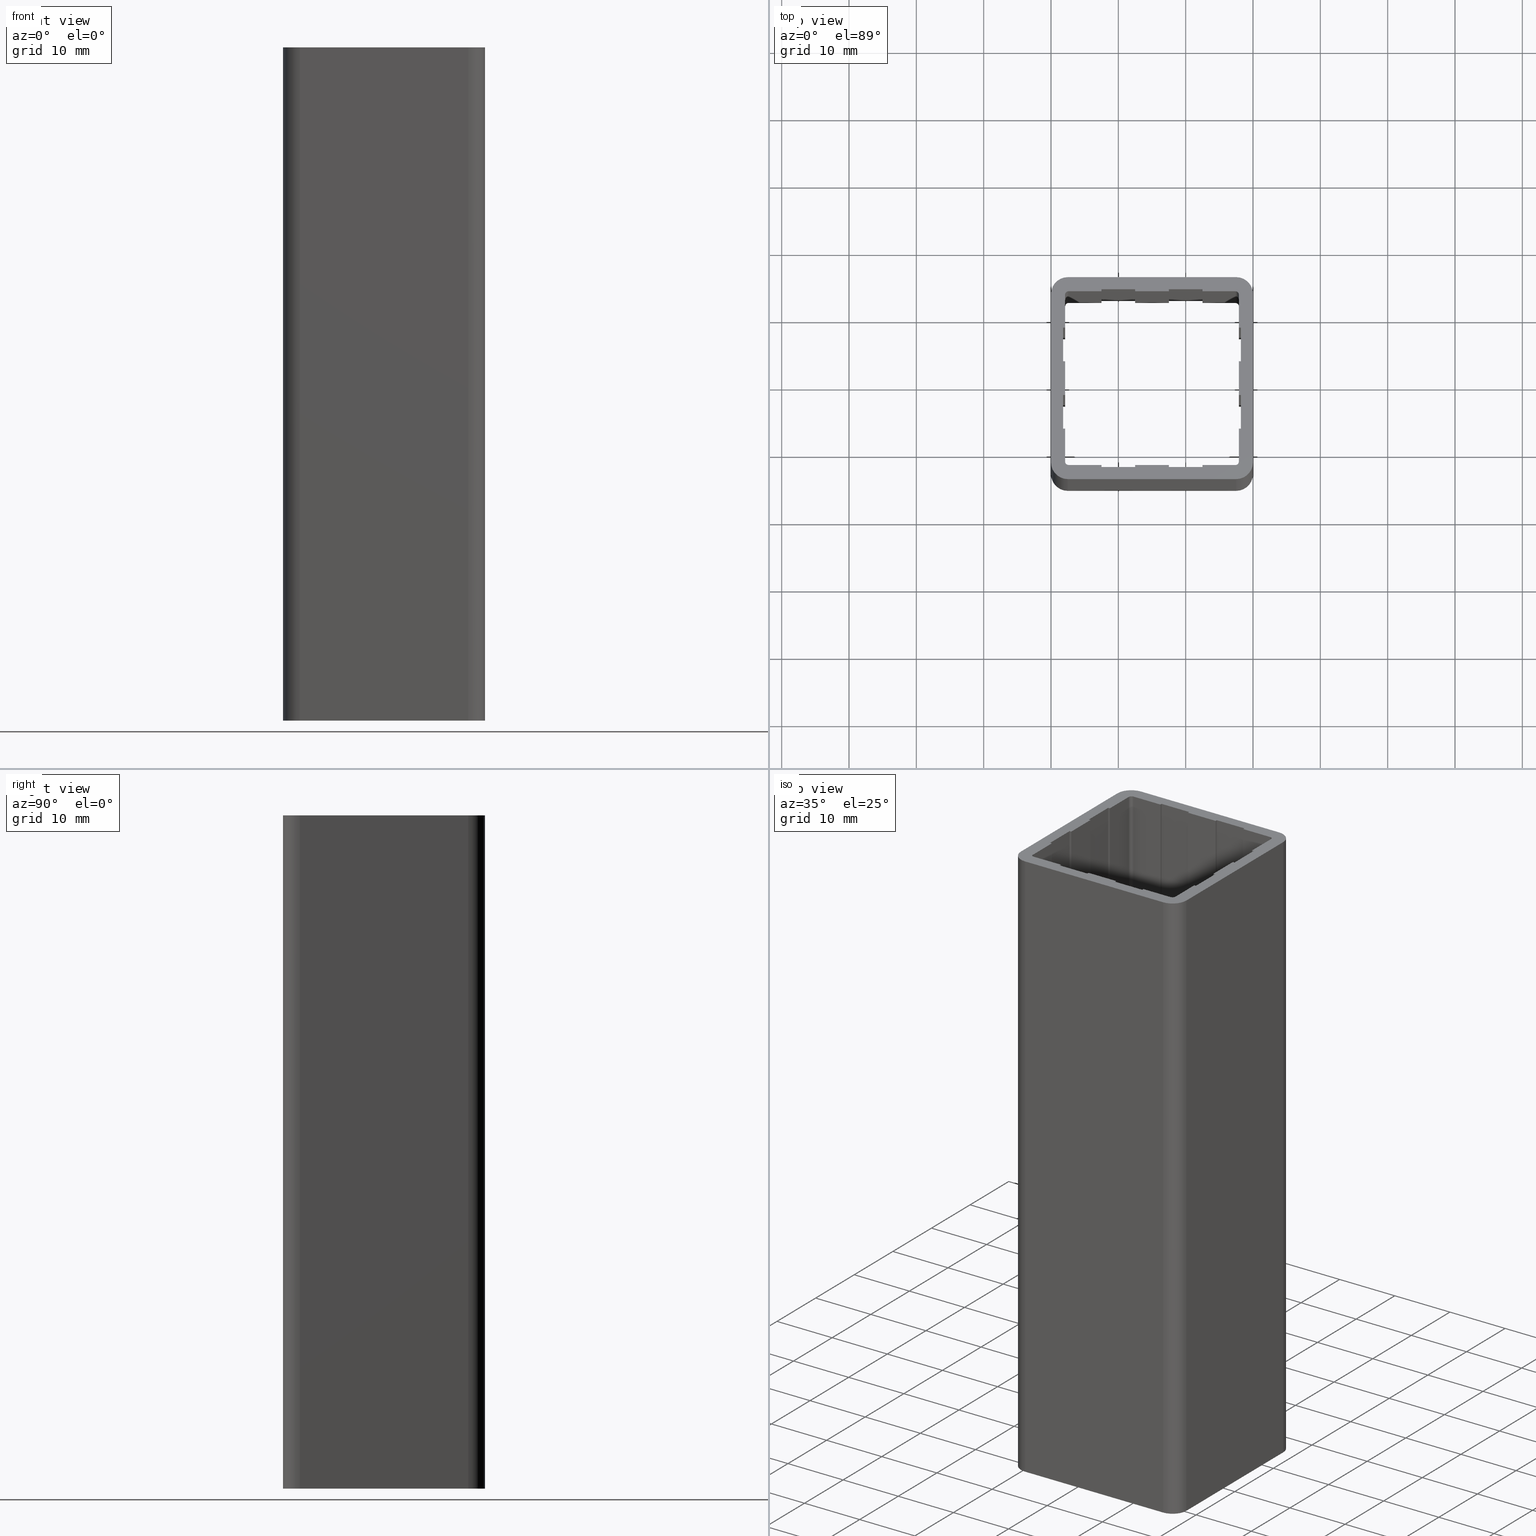
[diagram: canonical four-view strip — front | top / right | iso, engineering-drawing reading convention]
A machine part, canonical four-view strip (front | top / right | iso — engineering-drawing reading convention). The complete STEP part file that produces these views, byte-faithful:
ISO-10303-21;
HEADER;
/****************************************************************
 * Generated by software with PDE/Lib inside                    *
 * PDElib Version v4.4, created Mon 02/23/2004                  *
 * International Technegroup Inc. (www.iti-oh.com)              *
 ****************************************************************/
FILE_DESCRIPTION(('STEP AP203'),'2;1');
FILE_NAME('XB25130.stp','2011-03-21T16:27:49',(''),(''),'2009.3.110','THINKDESIGN','');
FILE_SCHEMA(('CONFIG_CONTROL_DESIGN'));
ENDSEC;
DATA;
#2=CARTESIAN_POINT('',(-29.999999996970018,12.499999998737394,0.0));
#3=DIRECTION('',(-1.0,0.0,0.0));
#4=DIRECTION('',(0.0,-1.0,0.0));
#5=AXIS2_PLACEMENT_3D('',#2,#3,#4);
#6=PLANE('',#5);
#7=CARTESIAN_POINT('',(-29.999999996970018,12.499999998737394,0.0));
#8=VERTEX_POINT('',#7);
#9=CARTESIAN_POINT('',(-29.999999996970246,-12.499999998737621,0.0));
#10=VERTEX_POINT('',#9);
#11=CARTESIAN_POINT('',(-29.999999996970018,12.499999998737394,0.0));
#12=DIRECTION('',(0.0,-1.0,0.0));
#13=VECTOR('',#12,24.999999997475015);
#14=LINE('',#11,#13);
#15=EDGE_CURVE('',#8,#10,#14,.T.);
#16=ORIENTED_EDGE('',*,*,#15,.T.);
#17=CARTESIAN_POINT('',(-29.999999996970246,-12.499999998737621,100.0));
#18=VERTEX_POINT('',#17);
#19=CARTESIAN_POINT('',(-29.999999996970246,-12.499999998737621,0.0));
#20=DIRECTION('',(0.0,0.0,1.0));
#21=VECTOR('',#20,100.0);
#22=LINE('',#19,#21);
#23=EDGE_CURVE('',#10,#18,#22,.T.);
#24=ORIENTED_EDGE('',*,*,#23,.T.);
#25=CARTESIAN_POINT('',(-29.999999996970018,12.499999998737394,100.0));
#26=VERTEX_POINT('',#25);
#27=CARTESIAN_POINT('',(-29.999999996970018,12.499999998737394,100.0));
#28=DIRECTION('',(0.0,-1.0,0.0));
#29=VECTOR('',#28,24.999999997475015);
#30=LINE('',#27,#29);
#31=EDGE_CURVE('',#26,#18,#30,.T.);
#32=ORIENTED_EDGE('',*,*,#31,.F.);
#33=CARTESIAN_POINT('',(-29.999999996970018,12.499999998737394,0.0));
#34=DIRECTION('',(0.0,0.0,1.0));
#35=VECTOR('',#34,100.0);
#36=LINE('',#33,#35);
#37=EDGE_CURVE('',#8,#26,#36,.T.);
#38=ORIENTED_EDGE('',*,*,#37,.F.);
#39=EDGE_LOOP('',(#16,#24,#32,#38));
#40=FACE_OUTER_BOUND('',#39,.T.);
#41=ADVANCED_FACE('',(#40),#6,.T.);
#42=CARTESIAN_POINT('',(-27.499999997222744,-12.499999998737621,0.0));
#43=DIRECTION('',(0.0,0.0,1.0));
#44=DIRECTION('',(1.0,0.0,0.0));
#45=AXIS2_PLACEMENT_3D('',#42,#43,#44);
#46=CYLINDRICAL_SURFACE('',#45,2.499999999747499);
#47=CARTESIAN_POINT('',(-27.499999997222744,-14.999999998485578,0.0));
#48=VERTEX_POINT('',#47);
#49=CARTESIAN_POINT('',(-27.499999997222744,-12.499999998737621,0.0));
#50=DIRECTION('',(0.0,0.0,1.0));
#51=DIRECTION('',(1.0,0.0,0.0));
#52=AXIS2_PLACEMENT_3D('',#49,#50,#51);
#53=CIRCLE('',#52,2.499999999747499);
#54=EDGE_CURVE('',#10,#48,#53,.T.);
#55=ORIENTED_EDGE('',*,*,#54,.T.);
#56=CARTESIAN_POINT('',(-27.499999997222744,-14.999999998485578,100.0));
#57=VERTEX_POINT('',#56);
#58=CARTESIAN_POINT('',(-27.499999997222744,-14.999999998485578,0.0));
#59=DIRECTION('',(0.0,0.0,1.0));
#60=VECTOR('',#59,100.0);
#61=LINE('',#58,#60);
#62=EDGE_CURVE('',#48,#57,#61,.T.);
#63=ORIENTED_EDGE('',*,*,#62,.T.);
#64=CARTESIAN_POINT('',(-27.499999997222744,-12.499999998737621,100.0));
#65=DIRECTION('',(0.0,0.0,1.0));
#66=DIRECTION('',(1.0,0.0,0.0));
#67=AXIS2_PLACEMENT_3D('',#64,#65,#66);
#68=CIRCLE('',#67,2.499999999747499);
#69=EDGE_CURVE('',#18,#57,#68,.T.);
#70=ORIENTED_EDGE('',*,*,#69,.F.);
#71=ORIENTED_EDGE('',*,*,#23,.F.);
#72=EDGE_LOOP('',(#55,#63,#70,#71));
#73=FACE_OUTER_BOUND('',#72,.T.);
#74=ADVANCED_FACE('',(#73),#46,.T.);
#75=CARTESIAN_POINT('',(-27.499999997222744,-14.999999998485578,0.0));
#76=DIRECTION('',(0.0,-1.0,0.0));
#77=DIRECTION('',(1.0,0.0,0.0));
#78=AXIS2_PLACEMENT_3D('',#75,#76,#77);
#79=PLANE('',#78);
#80=CARTESIAN_POINT('',(-2.499999999747615,-14.999999998485123,0.0));
#81=VERTEX_POINT('',#80);
#82=CARTESIAN_POINT('',(-27.499999997222744,-14.999999998485578,0.0));
#83=DIRECTION('',(1.0,0.0,0.0));
#84=VECTOR('',#83,24.999999997475129);
#85=LINE('',#82,#84);
#86=EDGE_CURVE('',#48,#81,#85,.T.);
#87=ORIENTED_EDGE('',*,*,#86,.T.);
#88=CARTESIAN_POINT('',(-2.499999999747615,-14.999999998485123,100.0));
#89=VERTEX_POINT('',#88);
#90=CARTESIAN_POINT('',(-2.499999999747615,-14.999999998485123,0.0));
#91=DIRECTION('',(0.0,0.0,1.0));
#92=VECTOR('',#91,100.0);
#93=LINE('',#90,#92);
#94=EDGE_CURVE('',#81,#89,#93,.T.);
#95=ORIENTED_EDGE('',*,*,#94,.T.);
#96=CARTESIAN_POINT('',(-27.499999997222744,-14.999999998485578,100.0));
#97=DIRECTION('',(1.0,0.0,0.0));
#98=VECTOR('',#97,24.999999997475129);
#99=LINE('',#96,#98);
#100=EDGE_CURVE('',#57,#89,#99,.T.);
#101=ORIENTED_EDGE('',*,*,#100,.F.);
#102=ORIENTED_EDGE('',*,*,#62,.F.);
#103=EDGE_LOOP('',(#87,#95,#101,#102));
#104=FACE_OUTER_BOUND('',#103,.T.);
#105=ADVANCED_FACE('',(#104),#79,.T.);
#106=CARTESIAN_POINT('',(-2.499999999747615,-12.499999998737621,0.0));
#107=DIRECTION('',(0.0,0.0,1.0));
#108=DIRECTION('',(5.053215E-016,-1.0,0.0));
#109=AXIS2_PLACEMENT_3D('',#106,#107,#108);
#110=CYLINDRICAL_SURFACE('',#109,2.499999999747499);
#111=CARTESIAN_POINT('',(0.0,-12.499999998737621,0.0));
#112=VERTEX_POINT('',#111);
#113=CARTESIAN_POINT('',(-2.499999999747615,-12.499999998737621,0.0));
#114=DIRECTION('',(0.0,0.0,1.0));
#115=DIRECTION('',(1.0,0.0,0.0));
#116=AXIS2_PLACEMENT_3D('',#113,#114,#115);
#117=CIRCLE('',#116,2.499999999747499);
#118=EDGE_CURVE('',#81,#112,#117,.T.);
#119=ORIENTED_EDGE('',*,*,#118,.T.);
#120=CARTESIAN_POINT('',(0.0,-12.499999998737621,100.0));
#121=VERTEX_POINT('',#120);
#122=CARTESIAN_POINT('',(0.0,-12.499999998737621,0.0));
#123=DIRECTION('',(0.0,0.0,1.0));
#124=VECTOR('',#123,100.0);
#125=LINE('',#122,#124);
#126=EDGE_CURVE('',#112,#121,#125,.T.);
#127=ORIENTED_EDGE('',*,*,#126,.T.);
#128=CARTESIAN_POINT('',(-2.499999999747615,-12.499999998737621,100.0));
#129=DIRECTION('',(0.0,0.0,1.0));
#130=DIRECTION('',(1.0,0.0,0.0));
#131=AXIS2_PLACEMENT_3D('',#128,#129,#130);
#132=CIRCLE('',#131,2.499999999747499);
#133=EDGE_CURVE('',#89,#121,#132,.T.);
#134=ORIENTED_EDGE('',*,*,#133,.F.);
#135=ORIENTED_EDGE('',*,*,#94,.F.);
#136=EDGE_LOOP('',(#119,#127,#134,#135));
#137=FACE_OUTER_BOUND('',#136,.T.);
#138=ADVANCED_FACE('',(#137),#110,.T.);
#139=CARTESIAN_POINT('',(0.0,-12.499999998737621,0.0));
#140=DIRECTION('',(1.0,0.0,0.0));
#141=DIRECTION('',(0.0,1.0,0.0));
#142=AXIS2_PLACEMENT_3D('',#139,#140,#141);
#143=PLANE('',#142);
#144=CARTESIAN_POINT('',(-1.136868E-013,12.499999998737394,0.0));
#145=VERTEX_POINT('',#144);
#146=CARTESIAN_POINT('',(0.0,-12.499999998737621,0.0));
#147=DIRECTION('',(0.0,1.0,0.0));
#148=VECTOR('',#147,24.999999997475015);
#149=LINE('',#146,#148);
#150=EDGE_CURVE('',#112,#145,#149,.T.);
#151=ORIENTED_EDGE('',*,*,#150,.T.);
#152=CARTESIAN_POINT('',(-1.136868E-013,12.499999998737394,100.0));
#153=VERTEX_POINT('',#152);
#154=CARTESIAN_POINT('',(-1.136868E-013,12.499999998737394,0.0));
#155=DIRECTION('',(0.0,0.0,1.0));
#156=VECTOR('',#155,100.0);
#157=LINE('',#154,#156);
#158=EDGE_CURVE('',#145,#153,#157,.T.);
#159=ORIENTED_EDGE('',*,*,#158,.T.);
#160=CARTESIAN_POINT('',(0.0,-12.499999998737621,100.0));
#161=DIRECTION('',(0.0,1.0,0.0));
#162=VECTOR('',#161,24.999999997475015);
#163=LINE('',#160,#162);
#164=EDGE_CURVE('',#121,#153,#163,.T.);
#165=ORIENTED_EDGE('',*,*,#164,.F.);
#166=ORIENTED_EDGE('',*,*,#126,.F.);
#167=EDGE_LOOP('',(#151,#159,#165,#166));
#168=FACE_OUTER_BOUND('',#167,.T.);
#169=ADVANCED_FACE('',(#168),#143,.T.);
#170=CARTESIAN_POINT('',(-2.499999999747615,12.499999998737394,0.0));
#171=DIRECTION('',(0.0,0.0,1.0));
#172=DIRECTION('',(1.0,0.0,0.0));
#173=AXIS2_PLACEMENT_3D('',#170,#171,#172);
#174=CYLINDRICAL_SURFACE('',#173,2.499999999747499);
#175=CARTESIAN_POINT('',(-2.499999999747615,14.999999998484327,0.0));
#176=VERTEX_POINT('',#175);
#177=CARTESIAN_POINT('',(-2.499999999747615,12.499999998737394,0.0));
#178=DIRECTION('',(0.0,0.0,1.0));
#179=DIRECTION('',(1.0,0.0,0.0));
#180=AXIS2_PLACEMENT_3D('',#177,#178,#179);
#181=CIRCLE('',#180,2.499999999747499);
#182=EDGE_CURVE('',#145,#176,#181,.T.);
#183=ORIENTED_EDGE('',*,*,#182,.T.);
#184=CARTESIAN_POINT('',(-2.499999999747615,14.999999998484327,100.0));
#185=VERTEX_POINT('',#184);
#186=CARTESIAN_POINT('',(-2.499999999747615,14.999999998484327,0.0));
#187=DIRECTION('',(0.0,0.0,1.0));
#188=VECTOR('',#187,100.0);
#189=LINE('',#186,#188);
#190=EDGE_CURVE('',#176,#185,#189,.T.);
#191=ORIENTED_EDGE('',*,*,#190,.T.);
#192=CARTESIAN_POINT('',(-2.499999999747615,12.499999998737394,100.0));
#193=DIRECTION('',(0.0,0.0,1.0));
#194=DIRECTION('',(1.0,0.0,0.0));
#195=AXIS2_PLACEMENT_3D('',#192,#193,#194);
#196=CIRCLE('',#195,2.499999999747499);
#197=EDGE_CURVE('',#153,#185,#196,.T.);
#198=ORIENTED_EDGE('',*,*,#197,.F.);
#199=ORIENTED_EDGE('',*,*,#158,.F.);
#200=EDGE_LOOP('',(#183,#191,#198,#199));
#201=FACE_OUTER_BOUND('',#200,.T.);
#202=ADVANCED_FACE('',(#201),#174,.T.);
#203=CARTESIAN_POINT('',(-2.499999999747615,14.999999998484327,0.0));
#204=DIRECTION('',(0.0,1.0,0.0));
#205=DIRECTION('',(-1.0,0.0,0.0));
#206=AXIS2_PLACEMENT_3D('',#203,#204,#205);
#207=PLANE('',#206);
#208=CARTESIAN_POINT('',(-27.499999997222744,14.999999998484782,0.0));
#209=VERTEX_POINT('',#208);
#210=CARTESIAN_POINT('',(-2.499999999747615,14.999999998484327,0.0));
#211=DIRECTION('',(-1.0,0.0,0.0));
#212=VECTOR('',#211,24.999999997475129);
#213=LINE('',#210,#212);
#214=EDGE_CURVE('',#176,#209,#213,.T.);
#215=ORIENTED_EDGE('',*,*,#214,.T.);
#216=CARTESIAN_POINT('',(-27.499999997222744,14.999999998484782,100.0));
#217=VERTEX_POINT('',#216);
#218=CARTESIAN_POINT('',(-27.499999997222744,14.999999998484782,0.0));
#219=DIRECTION('',(0.0,0.0,1.0));
#220=VECTOR('',#219,100.0);
#221=LINE('',#218,#220);
#222=EDGE_CURVE('',#209,#217,#221,.T.);
#223=ORIENTED_EDGE('',*,*,#222,.T.);
#224=CARTESIAN_POINT('',(-2.499999999747615,14.999999998484327,100.0));
#225=DIRECTION('',(-1.0,0.0,0.0));
#226=VECTOR('',#225,24.999999997475129);
#227=LINE('',#224,#226);
#228=EDGE_CURVE('',#185,#217,#227,.T.);
#229=ORIENTED_EDGE('',*,*,#228,.F.);
#230=ORIENTED_EDGE('',*,*,#190,.F.);
#231=EDGE_LOOP('',(#215,#223,#229,#230));
#232=FACE_OUTER_BOUND('',#231,.T.);
#233=ADVANCED_FACE('',(#232),#207,.T.);
#234=CARTESIAN_POINT('',(-27.499999997222744,12.499999998737394,0.0));
#235=DIRECTION('',(0.0,0.0,1.0));
#236=DIRECTION('',(1.0,0.0,0.0));
#237=AXIS2_PLACEMENT_3D('',#234,#235,#236);
#238=CYLINDRICAL_SURFACE('',#237,2.499999999747499);
#239=CARTESIAN_POINT('',(-27.499999997222744,12.499999998737394,0.0));
#240=DIRECTION('',(0.0,0.0,1.0));
#241=DIRECTION('',(1.0,0.0,0.0));
#242=AXIS2_PLACEMENT_3D('',#239,#240,#241);
#243=CIRCLE('',#242,2.499999999747499);
#244=EDGE_CURVE('',#209,#8,#243,.T.);
#245=ORIENTED_EDGE('',*,*,#244,.T.);
#246=ORIENTED_EDGE('',*,*,#37,.T.);
#247=CARTESIAN_POINT('',(-27.499999997222744,12.499999998737394,100.0));
#248=DIRECTION('',(0.0,0.0,1.0));
#249=DIRECTION('',(1.0,0.0,0.0));
#250=AXIS2_PLACEMENT_3D('',#247,#248,#249);
#251=CIRCLE('',#250,2.499999999747499);
#252=EDGE_CURVE('',#217,#26,#251,.T.);
#253=ORIENTED_EDGE('',*,*,#252,.F.);
#254=ORIENTED_EDGE('',*,*,#222,.F.);
#255=EDGE_LOOP('',(#245,#246,#253,#254));
#256=FACE_OUTER_BOUND('',#255,.T.);
#257=ADVANCED_FACE('',(#256),#238,.T.);
#258=CARTESIAN_POINT('',(-7.499999999242732,13.199999998666499,0.0));
#259=DIRECTION('',(-1.0,0.0,0.0));
#260=DIRECTION('',(0.0,-1.0,0.0));
#261=AXIS2_PLACEMENT_3D('',#258,#259,#260);
#262=PLANE('',#261);
#263=CARTESIAN_POINT('',(-7.499999999242732,13.199999998666499,0.0));
#264=VERTEX_POINT('',#263);
#265=CARTESIAN_POINT('',(-7.499999999242732,12.899999998696330,0.0));
#266=VERTEX_POINT('',#265);
#267=CARTESIAN_POINT('',(-7.499999999242732,13.199999998666499,0.0));
#268=DIRECTION('',(0.0,-1.0,0.0));
#269=VECTOR('',#268,0.299999999970169);
#270=LINE('',#267,#269);
#271=EDGE_CURVE('',#264,#266,#270,.T.);
#272=ORIENTED_EDGE('',*,*,#271,.T.);
#273=CARTESIAN_POINT('',(-7.499999999242732,12.899999998696330,100.0));
#274=VERTEX_POINT('',#273);
#275=CARTESIAN_POINT('',(-7.499999999242732,12.899999998696330,0.0));
#276=DIRECTION('',(0.0,0.0,1.0));
#277=VECTOR('',#276,100.0);
#278=LINE('',#275,#277);
#279=EDGE_CURVE('',#266,#274,#278,.T.);
#280=ORIENTED_EDGE('',*,*,#279,.T.);
#281=CARTESIAN_POINT('',(-7.499999999242732,13.199999998666499,100.0));
#282=VERTEX_POINT('',#281);
#283=CARTESIAN_POINT('',(-7.499999999242732,13.199999998666499,100.0));
#284=DIRECTION('',(0.0,-1.0,0.0));
#285=VECTOR('',#284,0.299999999970169);
#286=LINE('',#283,#285);
#287=EDGE_CURVE('',#282,#274,#286,.T.);
#288=ORIENTED_EDGE('',*,*,#287,.F.);
#289=CARTESIAN_POINT('',(-7.499999999242732,13.199999998666499,0.0));
#290=DIRECTION('',(0.0,0.0,1.0));
#291=VECTOR('',#290,100.0);
#292=LINE('',#289,#291);
#293=EDGE_CURVE('',#264,#282,#292,.T.);
#294=ORIENTED_EDGE('',*,*,#293,.F.);
#295=EDGE_LOOP('',(#272,#280,#288,#294));
#296=FACE_OUTER_BOUND('',#295,.T.);
#297=ADVANCED_FACE('',(#296),#262,.T.);
#298=CARTESIAN_POINT('',(-7.499999999242732,12.899999998696330,0.0));
#299=DIRECTION('',(0.0,-1.0,0.0));
#300=DIRECTION('',(1.0,0.0,0.0));
#301=AXIS2_PLACEMENT_3D('',#298,#299,#300);
#302=PLANE('',#301);
#303=CARTESIAN_POINT('',(-2.599999999737406,12.899999998697012,0.0));
#304=VERTEX_POINT('',#303);
#305=CARTESIAN_POINT('',(-7.499999999242732,12.899999998696330,0.0));
#306=DIRECTION('',(1.0,0.0,0.0));
#307=VECTOR('',#306,4.899999999505326);
#308=LINE('',#305,#307);
#309=EDGE_CURVE('',#266,#304,#308,.T.);
#310=ORIENTED_EDGE('',*,*,#309,.T.);
#311=CARTESIAN_POINT('',(-2.599999999737406,12.899999998697012,100.0));
#312=VERTEX_POINT('',#311);
#313=CARTESIAN_POINT('',(-2.599999999737406,12.899999998697012,0.0));
#314=DIRECTION('',(0.0,0.0,1.0));
#315=VECTOR('',#314,100.0);
#316=LINE('',#313,#315);
#317=EDGE_CURVE('',#304,#312,#316,.T.);
#318=ORIENTED_EDGE('',*,*,#317,.T.);
#319=CARTESIAN_POINT('',(-7.499999999242732,12.899999998696330,100.0));
#320=DIRECTION('',(1.0,0.0,0.0));
#321=VECTOR('',#320,4.899999999505326);
#322=LINE('',#319,#321);
#323=EDGE_CURVE('',#274,#312,#322,.T.);
#324=ORIENTED_EDGE('',*,*,#323,.F.);
#325=ORIENTED_EDGE('',*,*,#279,.F.);
#326=EDGE_LOOP('',(#310,#318,#324,#325));
#327=FACE_OUTER_BOUND('',#326,.T.);
#328=ADVANCED_FACE('',(#327),#302,.T.);
#329=CARTESIAN_POINT('',(-2.599999999737406,12.399999998747489,0.0));
#330=DIRECTION('',(0.0,0.0,-1.0));
#331=DIRECTION('',(5.053215E-016,1.0,0.0));
#332=AXIS2_PLACEMENT_3D('',#329,#330,#331);
#333=CYLINDRICAL_SURFACE('',#332,0.499999999949500);
#334=CARTESIAN_POINT('',(-2.099999999787997,12.399999998747489,0.0));
#335=VERTEX_POINT('',#334);
#336=CARTESIAN_POINT('',(-2.599999999737406,12.399999998747489,0.0));
#337=DIRECTION('',(0.0,0.0,-1.0));
#338=DIRECTION('',(1.0,0.0,0.0));
#339=AXIS2_PLACEMENT_3D('',#336,#337,#338);
#340=CIRCLE('',#339,0.499999999949500);
#341=EDGE_CURVE('',#304,#335,#340,.T.);
#342=ORIENTED_EDGE('',*,*,#341,.T.);
#343=CARTESIAN_POINT('',(-2.099999999787997,12.399999998747489,100.0));
#344=VERTEX_POINT('',#343);
#345=CARTESIAN_POINT('',(-2.099999999787997,12.399999998747489,0.0));
#346=DIRECTION('',(0.0,0.0,1.0));
#347=VECTOR('',#346,100.0);
#348=LINE('',#345,#347);
#349=EDGE_CURVE('',#335,#344,#348,.T.);
#350=ORIENTED_EDGE('',*,*,#349,.T.);
#351=CARTESIAN_POINT('',(-2.599999999737406,12.399999998747489,100.0));
#352=DIRECTION('',(0.0,0.0,-1.0));
#353=DIRECTION('',(1.0,0.0,0.0));
#354=AXIS2_PLACEMENT_3D('',#351,#352,#353);
#355=CIRCLE('',#354,0.499999999949500);
#356=EDGE_CURVE('',#312,#344,#355,.T.);
#357=ORIENTED_EDGE('',*,*,#356,.F.);
#358=ORIENTED_EDGE('',*,*,#317,.F.);
#359=EDGE_LOOP('',(#342,#350,#357,#358));
#360=FACE_OUTER_BOUND('',#359,.T.);
#361=ADVANCED_FACE('',(#360),#333,.F.);
#362=CARTESIAN_POINT('',(-2.099999999787997,12.399999998747489,0.0));
#363=DIRECTION('',(-1.0,0.0,0.0));
#364=DIRECTION('',(0.0,-1.0,0.0));
#365=AXIS2_PLACEMENT_3D('',#362,#363,#364);
#366=PLANE('',#365);
#367=CARTESIAN_POINT('',(-2.099999999787997,7.499999999241481,0.0));
#368=VERTEX_POINT('',#367);
#369=CARTESIAN_POINT('',(-2.099999999787997,12.399999998747489,0.0));
#370=DIRECTION('',(0.0,-1.0,0.0));
#371=VECTOR('',#370,4.899999999506008);
#372=LINE('',#369,#371);
#373=EDGE_CURVE('',#335,#368,#372,.T.);
#374=ORIENTED_EDGE('',*,*,#373,.T.);
#375=CARTESIAN_POINT('',(-2.099999999787997,7.499999999241481,100.0));
#376=VERTEX_POINT('',#375);
#377=CARTESIAN_POINT('',(-2.099999999787997,7.499999999241481,0.0));
#378=DIRECTION('',(0.0,0.0,1.0));
#379=VECTOR('',#378,100.0);
#380=LINE('',#377,#379);
#381=EDGE_CURVE('',#368,#376,#380,.T.);
#382=ORIENTED_EDGE('',*,*,#381,.T.);
#383=CARTESIAN_POINT('',(-2.099999999787997,12.399999998747489,100.0));
#384=DIRECTION('',(0.0,-1.0,0.0));
#385=VECTOR('',#384,4.899999999506008);
#386=LINE('',#383,#385);
#387=EDGE_CURVE('',#344,#376,#386,.T.);
#388=ORIENTED_EDGE('',*,*,#387,.F.);
#389=ORIENTED_EDGE('',*,*,#349,.F.);
#390=EDGE_LOOP('',(#374,#382,#388,#389));
#391=FACE_OUTER_BOUND('',#390,.T.);
#392=ADVANCED_FACE('',(#391),#366,.T.);
#393=CARTESIAN_POINT('',(-2.099999999787997,7.499999999241481,0.0));
#394=DIRECTION('',(0.0,-1.0,0.0));
#395=DIRECTION('',(1.0,0.0,0.0));
#396=AXIS2_PLACEMENT_3D('',#393,#394,#395);
#397=PLANE('',#396);
#398=CARTESIAN_POINT('',(-1.799999999818283,7.499999999241481,0.0));
#399=VERTEX_POINT('',#398);
#400=CARTESIAN_POINT('',(-2.099999999787997,7.499999999241481,0.0));
#401=DIRECTION('',(1.0,0.0,0.0));
#402=VECTOR('',#401,0.299999999969714);
#403=LINE('',#400,#402);
#404=EDGE_CURVE('',#368,#399,#403,.T.);
#405=ORIENTED_EDGE('',*,*,#404,.T.);
#406=CARTESIAN_POINT('',(-1.799999999818283,7.499999999241481,100.0));
#407=VERTEX_POINT('',#406);
#408=CARTESIAN_POINT('',(-1.799999999818283,7.499999999241481,0.0));
#409=DIRECTION('',(0.0,0.0,1.0));
#410=VECTOR('',#409,100.0);
#411=LINE('',#408,#410);
#412=EDGE_CURVE('',#399,#407,#411,.T.);
#413=ORIENTED_EDGE('',*,*,#412,.T.);
#414=CARTESIAN_POINT('',(-2.099999999787997,7.499999999241481,100.0));
#415=DIRECTION('',(1.0,0.0,0.0));
#416=VECTOR('',#415,0.299999999969714);
#417=LINE('',#414,#416);
#418=EDGE_CURVE('',#376,#407,#417,.T.);
#419=ORIENTED_EDGE('',*,*,#418,.F.);
#420=ORIENTED_EDGE('',*,*,#381,.F.);
#421=EDGE_LOOP('',(#405,#413,#419,#420));
#422=FACE_OUTER_BOUND('',#421,.T.);
#423=ADVANCED_FACE('',(#422),#397,.T.);
#424=CARTESIAN_POINT('',(-1.799999999818283,7.499999999241481,0.0));
#425=DIRECTION('',(-1.0,0.0,0.0));
#426=DIRECTION('',(0.0,-1.0,0.0));
#427=AXIS2_PLACEMENT_3D('',#424,#425,#426);
#428=PLANE('',#427);
#429=CARTESIAN_POINT('',(-1.799999999818283,2.499999999747388,0.0));
#430=VERTEX_POINT('',#429);
#431=CARTESIAN_POINT('',(-1.799999999818283,7.499999999241481,0.0));
#432=DIRECTION('',(0.0,-1.0,0.0));
#433=VECTOR('',#432,4.999999999494094);
#434=LINE('',#431,#433);
#435=EDGE_CURVE('',#399,#430,#434,.T.);
#436=ORIENTED_EDGE('',*,*,#435,.T.);
#437=CARTESIAN_POINT('',(-1.799999999818283,2.499999999747388,100.0));
#438=VERTEX_POINT('',#437);
#439=CARTESIAN_POINT('',(-1.799999999818283,2.499999999747388,0.0));
#440=DIRECTION('',(0.0,0.0,1.0));
#441=VECTOR('',#440,100.0);
#442=LINE('',#439,#441);
#443=EDGE_CURVE('',#430,#438,#442,.T.);
#444=ORIENTED_EDGE('',*,*,#443,.T.);
#445=CARTESIAN_POINT('',(-1.799999999818283,7.499999999241481,100.0));
#446=DIRECTION('',(0.0,-1.0,0.0));
#447=VECTOR('',#446,4.999999999494094);
#448=LINE('',#445,#447);
#449=EDGE_CURVE('',#407,#438,#448,.T.);
#450=ORIENTED_EDGE('',*,*,#449,.F.);
#451=ORIENTED_EDGE('',*,*,#412,.F.);
#452=EDGE_LOOP('',(#436,#444,#450,#451));
#453=FACE_OUTER_BOUND('',#452,.T.);
#454=ADVANCED_FACE('',(#453),#428,.T.);
#455=CARTESIAN_POINT('',(-1.799999999818283,2.499999999747388,0.0));
#456=DIRECTION('',(0.0,1.0,0.0));
#457=DIRECTION('',(-1.0,0.0,0.0));
#458=AXIS2_PLACEMENT_3D('',#455,#456,#457);
#459=PLANE('',#458);
#460=CARTESIAN_POINT('',(-2.099999999787997,2.499999999747388,0.0));
#461=VERTEX_POINT('',#460);
#462=CARTESIAN_POINT('',(-1.799999999818283,2.499999999747388,0.0));
#463=DIRECTION('',(-1.0,0.0,0.0));
#464=VECTOR('',#463,0.299999999969714);
#465=LINE('',#462,#464);
#466=EDGE_CURVE('',#430,#461,#465,.T.);
#467=ORIENTED_EDGE('',*,*,#466,.T.);
#468=CARTESIAN_POINT('',(-2.099999999787997,2.499999999747388,100.0));
#469=VERTEX_POINT('',#468);
#470=CARTESIAN_POINT('',(-2.099999999787997,2.499999999747388,0.0));
#471=DIRECTION('',(0.0,0.0,1.0));
#472=VECTOR('',#471,100.0);
#473=LINE('',#470,#472);
#474=EDGE_CURVE('',#461,#469,#473,.T.);
#475=ORIENTED_EDGE('',*,*,#474,.T.);
#476=CARTESIAN_POINT('',(-1.799999999818283,2.499999999747388,100.0));
#477=DIRECTION('',(-1.0,0.0,0.0));
#478=VECTOR('',#477,0.299999999969714);
#479=LINE('',#476,#478);
#480=EDGE_CURVE('',#438,#469,#479,.T.);
#481=ORIENTED_EDGE('',*,*,#480,.F.);
#482=ORIENTED_EDGE('',*,*,#443,.F.);
#483=EDGE_LOOP('',(#467,#475,#481,#482));
#484=FACE_OUTER_BOUND('',#483,.T.);
#485=ADVANCED_FACE('',(#484),#459,.T.);
#486=CARTESIAN_POINT('',(-2.099999999787997,2.499999999747388,0.0));
#487=DIRECTION('',(-1.0,0.0,0.0));
#488=DIRECTION('',(0.0,-1.0,0.0));
#489=AXIS2_PLACEMENT_3D('',#486,#487,#488);
#490=PLANE('',#489);
#491=CARTESIAN_POINT('',(-2.099999999787997,-2.499999999748525,0.0));
#492=VERTEX_POINT('',#491);
#493=CARTESIAN_POINT('',(-2.099999999787997,2.499999999747388,0.0));
#494=DIRECTION('',(0.0,-1.0,0.0));
#495=VECTOR('',#494,4.999999999495913);
#496=LINE('',#493,#495);
#497=EDGE_CURVE('',#461,#492,#496,.T.);
#498=ORIENTED_EDGE('',*,*,#497,.T.);
#499=CARTESIAN_POINT('',(-2.099999999787997,-2.499999999748525,100.0));
#500=VERTEX_POINT('',#499);
#501=CARTESIAN_POINT('',(-2.099999999787997,-2.499999999748525,0.0));
#502=DIRECTION('',(0.0,0.0,1.0));
#503=VECTOR('',#502,100.0);
#504=LINE('',#501,#503);
#505=EDGE_CURVE('',#492,#500,#504,.T.);
#506=ORIENTED_EDGE('',*,*,#505,.T.);
#507=CARTESIAN_POINT('',(-2.099999999787997,2.499999999747388,100.0));
#508=DIRECTION('',(0.0,-1.0,0.0));
#509=VECTOR('',#508,4.999999999495913);
#510=LINE('',#507,#509);
#511=EDGE_CURVE('',#469,#500,#510,.T.);
#512=ORIENTED_EDGE('',*,*,#511,.F.);
#513=ORIENTED_EDGE('',*,*,#474,.F.);
#514=EDGE_LOOP('',(#498,#506,#512,#513));
#515=FACE_OUTER_BOUND('',#514,.T.);
#516=ADVANCED_FACE('',(#515),#490,.T.);
#517=CARTESIAN_POINT('',(-2.099999999787997,-2.499999999748525,0.0));
#518=DIRECTION('',(0.0,-1.0,0.0));
#519=DIRECTION('',(1.0,0.0,0.0));
#520=AXIS2_PLACEMENT_3D('',#517,#518,#519);
#521=PLANE('',#520);
#522=CARTESIAN_POINT('',(-1.799999999818283,-2.499999999748525,0.0));
#523=VERTEX_POINT('',#522);
#524=CARTESIAN_POINT('',(-2.099999999787997,-2.499999999748525,0.0));
#525=DIRECTION('',(1.0,0.0,0.0));
#526=VECTOR('',#525,0.299999999969714);
#527=LINE('',#524,#526);
#528=EDGE_CURVE('',#492,#523,#527,.T.);
#529=ORIENTED_EDGE('',*,*,#528,.T.);
#530=CARTESIAN_POINT('',(-1.799999999818283,-2.499999999748525,100.0));
#531=VERTEX_POINT('',#530);
#532=CARTESIAN_POINT('',(-1.799999999818283,-2.499999999748525,0.0));
#533=DIRECTION('',(0.0,0.0,1.0));
#534=VECTOR('',#533,100.0);
#535=LINE('',#532,#534);
#536=EDGE_CURVE('',#523,#531,#535,.T.);
#537=ORIENTED_EDGE('',*,*,#536,.T.);
#538=CARTESIAN_POINT('',(-2.099999999787997,-2.499999999748525,100.0));
#539=DIRECTION('',(1.0,0.0,0.0));
#540=VECTOR('',#539,0.299999999969714);
#541=LINE('',#538,#540);
#542=EDGE_CURVE('',#500,#531,#541,.T.);
#543=ORIENTED_EDGE('',*,*,#542,.F.);
#544=ORIENTED_EDGE('',*,*,#505,.F.);
#545=EDGE_LOOP('',(#529,#537,#543,#544));
#546=FACE_OUTER_BOUND('',#545,.T.);
#547=ADVANCED_FACE('',(#546),#521,.T.);
#548=CARTESIAN_POINT('',(-1.799999999818283,-2.499999999748525,0.0));
#549=DIRECTION('',(-1.0,0.0,0.0));
#550=DIRECTION('',(0.0,-1.0,0.0));
#551=AXIS2_PLACEMENT_3D('',#548,#549,#550);
#552=PLANE('',#551);
#553=CARTESIAN_POINT('',(-1.799999999818283,-7.499999999243528,0.0));
#554=VERTEX_POINT('',#553);
#555=CARTESIAN_POINT('',(-1.799999999818283,-2.499999999748525,0.0));
#556=DIRECTION('',(0.0,-1.0,0.0));
#557=VECTOR('',#556,4.999999999495003);
#558=LINE('',#555,#557);
#559=EDGE_CURVE('',#523,#554,#558,.T.);
#560=ORIENTED_EDGE('',*,*,#559,.T.);
#561=CARTESIAN_POINT('',(-1.799999999818283,-7.499999999243528,100.0));
#562=VERTEX_POINT('',#561);
#563=CARTESIAN_POINT('',(-1.799999999818283,-7.499999999243528,0.0));
#564=DIRECTION('',(0.0,0.0,1.0));
#565=VECTOR('',#564,100.0);
#566=LINE('',#563,#565);
#567=EDGE_CURVE('',#554,#562,#566,.T.);
#568=ORIENTED_EDGE('',*,*,#567,.T.);
#569=CARTESIAN_POINT('',(-1.799999999818283,-2.499999999748525,100.0));
#570=DIRECTION('',(0.0,-1.0,0.0));
#571=VECTOR('',#570,4.999999999495003);
#572=LINE('',#569,#571);
#573=EDGE_CURVE('',#531,#562,#572,.T.);
#574=ORIENTED_EDGE('',*,*,#573,.F.);
#575=ORIENTED_EDGE('',*,*,#536,.F.);
#576=EDGE_LOOP('',(#560,#568,#574,#575));
#577=FACE_OUTER_BOUND('',#576,.T.);
#578=ADVANCED_FACE('',(#577),#552,.T.);
#579=CARTESIAN_POINT('',(-1.799999999818283,-7.499999999243528,0.0));
#580=DIRECTION('',(0.0,1.0,0.0));
#581=DIRECTION('',(-1.0,0.0,0.0));
#582=AXIS2_PLACEMENT_3D('',#579,#580,#581);
#583=PLANE('',#582);
#584=CARTESIAN_POINT('',(-2.099999999787997,-7.499999999243528,0.0));
#585=VERTEX_POINT('',#584);
#586=CARTESIAN_POINT('',(-1.799999999818283,-7.499999999243528,0.0));
#587=DIRECTION('',(-1.0,0.0,0.0));
#588=VECTOR('',#587,0.299999999969714);
#589=LINE('',#586,#588);
#590=EDGE_CURVE('',#554,#585,#589,.T.);
#591=ORIENTED_EDGE('',*,*,#590,.T.);
#592=CARTESIAN_POINT('',(-2.099999999787997,-7.499999999243528,100.0));
#593=VERTEX_POINT('',#592);
#594=CARTESIAN_POINT('',(-2.099999999787997,-7.499999999243528,0.0));
#595=DIRECTION('',(0.0,0.0,1.0));
#596=VECTOR('',#595,100.0);
#597=LINE('',#594,#596);
#598=EDGE_CURVE('',#585,#593,#597,.T.);
#599=ORIENTED_EDGE('',*,*,#598,.T.);
#600=CARTESIAN_POINT('',(-1.799999999818283,-7.499999999243528,100.0));
#601=DIRECTION('',(-1.0,0.0,0.0));
#602=VECTOR('',#601,0.299999999969714);
#603=LINE('',#600,#602);
#604=EDGE_CURVE('',#562,#593,#603,.T.);
#605=ORIENTED_EDGE('',*,*,#604,.F.);
#606=ORIENTED_EDGE('',*,*,#567,.F.);
#607=EDGE_LOOP('',(#591,#599,#605,#606));
#608=FACE_OUTER_BOUND('',#607,.T.);
#609=ADVANCED_FACE('',(#608),#583,.T.);
#610=CARTESIAN_POINT('',(-2.099999999787997,-7.499999999243528,0.0));
#611=DIRECTION('',(-1.0,0.0,0.0));
#612=DIRECTION('',(0.0,-1.0,0.0));
#613=AXIS2_PLACEMENT_3D('',#610,#611,#612);
#614=PLANE('',#613);
#615=CARTESIAN_POINT('',(-2.099999999787883,-12.399999998748513,0.0));
#616=VERTEX_POINT('',#615);
#617=CARTESIAN_POINT('',(-2.099999999787997,-7.499999999243528,0.0));
#618=DIRECTION('',(0.0,-1.0,0.0));
#619=VECTOR('',#618,4.899999999504985);
#620=LINE('',#617,#619);
#621=EDGE_CURVE('',#585,#616,#620,.T.);
#622=ORIENTED_EDGE('',*,*,#621,.T.);
#623=CARTESIAN_POINT('',(-2.099999999787883,-12.399999998748513,100.0));
#624=VERTEX_POINT('',#623);
#625=CARTESIAN_POINT('',(-2.099999999787883,-12.399999998748513,0.0));
#626=DIRECTION('',(0.0,0.0,1.0));
#627=VECTOR('',#626,100.0);
#628=LINE('',#625,#627);
#629=EDGE_CURVE('',#616,#624,#628,.T.);
#630=ORIENTED_EDGE('',*,*,#629,.T.);
#631=CARTESIAN_POINT('',(-2.099999999787997,-7.499999999243528,100.0));
#632=DIRECTION('',(0.0,-1.0,0.0));
#633=VECTOR('',#632,4.899999999504985);
#634=LINE('',#631,#633);
#635=EDGE_CURVE('',#593,#624,#634,.T.);
#636=ORIENTED_EDGE('',*,*,#635,.F.);
#637=ORIENTED_EDGE('',*,*,#598,.F.);
#638=EDGE_LOOP('',(#622,#630,#636,#637));
#639=FACE_OUTER_BOUND('',#638,.T.);
#640=ADVANCED_FACE('',(#639),#614,.T.);
#641=CARTESIAN_POINT('',(-2.599999999737406,-12.399999998748513,0.0));
#642=DIRECTION('',(0.0,0.0,-1.0));
#643=DIRECTION('',(1.0,0.0,0.0));
#644=AXIS2_PLACEMENT_3D('',#641,#642,#643);
#645=CYLINDRICAL_SURFACE('',#644,0.499999999949500);
#646=CARTESIAN_POINT('',(-2.599999999737406,-12.899999998697581,0.0));
#647=VERTEX_POINT('',#646);
#648=CARTESIAN_POINT('',(-2.599999999737406,-12.399999998748513,0.0));
#649=DIRECTION('',(0.0,0.0,-1.0));
#650=DIRECTION('',(1.0,0.0,0.0));
#651=AXIS2_PLACEMENT_3D('',#648,#649,#650);
#652=CIRCLE('',#651,0.499999999949500);
#653=EDGE_CURVE('',#616,#647,#652,.T.);
#654=ORIENTED_EDGE('',*,*,#653,.T.);
#655=CARTESIAN_POINT('',(-2.599999999737406,-12.899999998697581,100.0));
#656=VERTEX_POINT('',#655);
#657=CARTESIAN_POINT('',(-2.599999999737406,-12.899999998697581,0.0));
#658=DIRECTION('',(0.0,0.0,1.0));
#659=VECTOR('',#658,100.0);
#660=LINE('',#657,#659);
#661=EDGE_CURVE('',#647,#656,#660,.T.);
#662=ORIENTED_EDGE('',*,*,#661,.T.);
#663=CARTESIAN_POINT('',(-2.599999999737406,-12.399999998748513,100.0));
#664=DIRECTION('',(0.0,0.0,-1.0));
#665=DIRECTION('',(1.0,0.0,0.0));
#666=AXIS2_PLACEMENT_3D('',#663,#664,#665);
#667=CIRCLE('',#666,0.499999999949500);
#668=EDGE_CURVE('',#624,#656,#667,.T.);
#669=ORIENTED_EDGE('',*,*,#668,.F.);
#670=ORIENTED_EDGE('',*,*,#629,.F.);
#671=EDGE_LOOP('',(#654,#662,#669,#670));
#672=FACE_OUTER_BOUND('',#671,.T.);
#673=ADVANCED_FACE('',(#672),#645,.F.);
#674=CARTESIAN_POINT('',(-2.599999999737406,-12.899999998697581,0.0));
#675=DIRECTION('',(0.0,1.0,0.0));
#676=DIRECTION('',(-1.0,0.0,0.0));
#677=AXIS2_PLACEMENT_3D('',#674,#675,#676);
#678=PLANE('',#677);
#679=CARTESIAN_POINT('',(-7.499999999242732,-12.899999998697581,0.0));
#680=VERTEX_POINT('',#679);
#681=CARTESIAN_POINT('',(-2.599999999737406,-12.899999998697581,0.0));
#682=DIRECTION('',(-1.0,0.0,0.0));
#683=VECTOR('',#682,4.899999999505326);
#684=LINE('',#681,#683);
#685=EDGE_CURVE('',#647,#680,#684,.T.);
#686=ORIENTED_EDGE('',*,*,#685,.T.);
#687=CARTESIAN_POINT('',(-7.499999999242732,-12.899999998697581,100.0));
#688=VERTEX_POINT('',#687);
#689=CARTESIAN_POINT('',(-7.499999999242732,-12.899999998697581,0.0));
#690=DIRECTION('',(0.0,0.0,1.0));
#691=VECTOR('',#690,100.0);
#692=LINE('',#689,#691);
#693=EDGE_CURVE('',#680,#688,#692,.T.);
#694=ORIENTED_EDGE('',*,*,#693,.T.);
#695=CARTESIAN_POINT('',(-2.599999999737406,-12.899999998697581,100.0));
#696=DIRECTION('',(-1.0,0.0,0.0));
#697=VECTOR('',#696,4.899999999505326);
#698=LINE('',#695,#697);
#699=EDGE_CURVE('',#656,#688,#698,.T.);
#700=ORIENTED_EDGE('',*,*,#699,.F.);
#701=ORIENTED_EDGE('',*,*,#661,.F.);
#702=EDGE_LOOP('',(#686,#694,#700,#701));
#703=FACE_OUTER_BOUND('',#702,.T.);
#704=ADVANCED_FACE('',(#703),#678,.T.);
#705=CARTESIAN_POINT('',(-7.499999999242732,-12.899999998697581,0.0));
#706=DIRECTION('',(-1.0,0.0,0.0));
#707=DIRECTION('',(0.0,-1.0,0.0));
#708=AXIS2_PLACEMENT_3D('',#705,#706,#707);
#709=PLANE('',#708);
#710=CARTESIAN_POINT('',(-7.499999999242732,-13.199999998667522,0.0));
#711=VERTEX_POINT('',#710);
#712=CARTESIAN_POINT('',(-7.499999999242732,-12.899999998697581,0.0));
#713=DIRECTION('',(0.0,-1.0,0.0));
#714=VECTOR('',#713,0.299999999969941);
#715=LINE('',#712,#714);
#716=EDGE_CURVE('',#680,#711,#715,.T.);
#717=ORIENTED_EDGE('',*,*,#716,.T.);
#718=CARTESIAN_POINT('',(-7.499999999242732,-13.199999998667522,100.0));
#719=VERTEX_POINT('',#718);
#720=CARTESIAN_POINT('',(-7.499999999242732,-13.199999998667522,0.0));
#721=DIRECTION('',(0.0,0.0,1.0));
#722=VECTOR('',#721,100.0);
#723=LINE('',#720,#722);
#724=EDGE_CURVE('',#711,#719,#723,.T.);
#725=ORIENTED_EDGE('',*,*,#724,.T.);
#726=CARTESIAN_POINT('',(-7.499999999242732,-12.899999998697581,100.0));
#727=DIRECTION('',(0.0,-1.0,0.0));
#728=VECTOR('',#727,0.299999999969941);
#729=LINE('',#726,#728);
#730=EDGE_CURVE('',#688,#719,#729,.T.);
#731=ORIENTED_EDGE('',*,*,#730,.F.);
#732=ORIENTED_EDGE('',*,*,#693,.F.);
#733=EDGE_LOOP('',(#717,#725,#731,#732));
#734=FACE_OUTER_BOUND('',#733,.T.);
#735=ADVANCED_FACE('',(#734),#709,.T.);
#736=CARTESIAN_POINT('',(-7.499999999242732,-13.199999998667522,0.0));
#737=DIRECTION('',(0.0,1.0,0.0));
#738=DIRECTION('',(-1.0,0.0,0.0));
#739=AXIS2_PLACEMENT_3D('',#736,#737,#738);
#740=PLANE('',#739);
#741=CARTESIAN_POINT('',(-12.499999998737508,-13.199999998667522,0.0));
#742=VERTEX_POINT('',#741);
#743=CARTESIAN_POINT('',(-7.499999999242732,-13.199999998667522,0.0));
#744=DIRECTION('',(-1.0,0.0,0.0));
#745=VECTOR('',#744,4.999999999494776);
#746=LINE('',#743,#745);
#747=EDGE_CURVE('',#711,#742,#746,.T.);
#748=ORIENTED_EDGE('',*,*,#747,.T.);
#749=CARTESIAN_POINT('',(-12.499999998737508,-13.199999998667522,100.0));
#750=VERTEX_POINT('',#749);
#751=CARTESIAN_POINT('',(-12.499999998737508,-13.199999998667522,0.0));
#752=DIRECTION('',(0.0,0.0,1.0));
#753=VECTOR('',#752,100.0);
#754=LINE('',#751,#753);
#755=EDGE_CURVE('',#742,#750,#754,.T.);
#756=ORIENTED_EDGE('',*,*,#755,.T.);
#757=CARTESIAN_POINT('',(-7.499999999242732,-13.199999998667522,100.0));
#758=DIRECTION('',(-1.0,0.0,0.0));
#759=VECTOR('',#758,4.999999999494776);
#760=LINE('',#757,#759);
#761=EDGE_CURVE('',#719,#750,#760,.T.);
#762=ORIENTED_EDGE('',*,*,#761,.F.);
#763=ORIENTED_EDGE('',*,*,#724,.F.);
#764=EDGE_LOOP('',(#748,#756,#762,#763));
#765=FACE_OUTER_BOUND('',#764,.T.);
#766=ADVANCED_FACE('',(#765),#740,.T.);
#767=CARTESIAN_POINT('',(-12.499999998737508,-13.199999998667522,0.0));
#768=DIRECTION('',(1.0,0.0,0.0));
#769=DIRECTION('',(0.0,1.0,0.0));
#770=AXIS2_PLACEMENT_3D('',#767,#768,#769);
#771=PLANE('',#770);
#772=CARTESIAN_POINT('',(-12.499999998737508,-12.899999998697581,0.0));
#773=VERTEX_POINT('',#772);
#774=CARTESIAN_POINT('',(-12.499999998737508,-13.199999998667522,0.0));
#775=DIRECTION('',(0.0,1.0,0.0));
#776=VECTOR('',#775,0.299999999969941);
#777=LINE('',#774,#776);
#778=EDGE_CURVE('',#742,#773,#777,.T.);
#779=ORIENTED_EDGE('',*,*,#778,.T.);
#780=CARTESIAN_POINT('',(-12.499999998737508,-12.899999998697581,100.0));
#781=VERTEX_POINT('',#780);
#782=CARTESIAN_POINT('',(-12.499999998737508,-12.899999998697581,0.0));
#783=DIRECTION('',(0.0,0.0,1.0));
#784=VECTOR('',#783,100.0);
#785=LINE('',#782,#784);
#786=EDGE_CURVE('',#773,#781,#785,.T.);
#787=ORIENTED_EDGE('',*,*,#786,.T.);
#788=CARTESIAN_POINT('',(-12.499999998737508,-13.199999998667522,100.0));
#789=DIRECTION('',(0.0,1.0,0.0));
#790=VECTOR('',#789,0.299999999969941);
#791=LINE('',#788,#790);
#792=EDGE_CURVE('',#750,#781,#791,.T.);
#793=ORIENTED_EDGE('',*,*,#792,.F.);
#794=ORIENTED_EDGE('',*,*,#755,.F.);
#795=EDGE_LOOP('',(#779,#787,#793,#794));
#796=FACE_OUTER_BOUND('',#795,.T.);
#797=ADVANCED_FACE('',(#796),#771,.T.);
#798=CARTESIAN_POINT('',(-12.499999998737508,-12.899999998697581,0.0));
#799=DIRECTION('',(0.0,1.0,0.0));
#800=DIRECTION('',(-1.0,0.0,0.0));
#801=AXIS2_PLACEMENT_3D('',#798,#799,#800);
#802=PLANE('',#801);
#803=CARTESIAN_POINT('',(-17.499999998232624,-12.899999998697581,0.0));
#804=VERTEX_POINT('',#803);
#805=CARTESIAN_POINT('',(-12.499999998737508,-12.899999998697581,0.0));
#806=DIRECTION('',(-1.0,0.0,0.0));
#807=VECTOR('',#806,4.999999999495117);
#808=LINE('',#805,#807);
#809=EDGE_CURVE('',#773,#804,#808,.T.);
#810=ORIENTED_EDGE('',*,*,#809,.T.);
#811=CARTESIAN_POINT('',(-17.499999998232624,-12.899999998697581,100.0));
#812=VERTEX_POINT('',#811);
#813=CARTESIAN_POINT('',(-17.499999998232624,-12.899999998697581,0.0));
#814=DIRECTION('',(0.0,0.0,1.0));
#815=VECTOR('',#814,100.0);
#816=LINE('',#813,#815);
#817=EDGE_CURVE('',#804,#812,#816,.T.);
#818=ORIENTED_EDGE('',*,*,#817,.T.);
#819=CARTESIAN_POINT('',(-12.499999998737508,-12.899999998697581,100.0));
#820=DIRECTION('',(-1.0,0.0,0.0));
#821=VECTOR('',#820,4.999999999495117);
#822=LINE('',#819,#821);
#823=EDGE_CURVE('',#781,#812,#822,.T.);
#824=ORIENTED_EDGE('',*,*,#823,.F.);
#825=ORIENTED_EDGE('',*,*,#786,.F.);
#826=EDGE_LOOP('',(#810,#818,#824,#825));
#827=FACE_OUTER_BOUND('',#826,.T.);
#828=ADVANCED_FACE('',(#827),#802,.T.);
#829=CARTESIAN_POINT('',(-17.499999998232624,-12.899999998697581,0.0));
#830=DIRECTION('',(-1.0,0.0,0.0));
#831=DIRECTION('',(0.0,-1.0,0.0));
#832=AXIS2_PLACEMENT_3D('',#829,#830,#831);
#833=PLANE('',#832);
#834=CARTESIAN_POINT('',(-17.499999998232624,-13.199999998667522,0.0));
#835=VERTEX_POINT('',#834);
#836=CARTESIAN_POINT('',(-17.499999998232624,-12.899999998697581,0.0));
#837=DIRECTION('',(0.0,-1.0,0.0));
#838=VECTOR('',#837,0.299999999969941);
#839=LINE('',#836,#838);
#840=EDGE_CURVE('',#804,#835,#839,.T.);
#841=ORIENTED_EDGE('',*,*,#840,.T.);
#842=CARTESIAN_POINT('',(-17.499999998232624,-13.199999998667522,100.0));
#843=VERTEX_POINT('',#842);
#844=CARTESIAN_POINT('',(-17.499999998232624,-13.199999998667522,0.0));
#845=DIRECTION('',(0.0,0.0,1.0));
#846=VECTOR('',#845,100.0);
#847=LINE('',#844,#846);
#848=EDGE_CURVE('',#835,#843,#847,.T.);
#849=ORIENTED_EDGE('',*,*,#848,.T.);
#850=CARTESIAN_POINT('',(-17.499999998232624,-12.899999998697581,100.0));
#851=DIRECTION('',(0.0,-1.0,0.0));
#852=VECTOR('',#851,0.299999999969941);
#853=LINE('',#850,#852);
#854=EDGE_CURVE('',#812,#843,#853,.T.);
#855=ORIENTED_EDGE('',*,*,#854,.F.);
#856=ORIENTED_EDGE('',*,*,#817,.F.);
#857=EDGE_LOOP('',(#841,#849,#855,#856));
#858=FACE_OUTER_BOUND('',#857,.T.);
#859=ADVANCED_FACE('',(#858),#833,.T.);
#860=CARTESIAN_POINT('',(-17.499999998232624,-13.199999998667522,0.0));
#861=DIRECTION('',(0.0,1.0,0.0));
#862=DIRECTION('',(-1.0,0.0,0.0));
#863=AXIS2_PLACEMENT_3D('',#860,#861,#862);
#864=PLANE('',#863);
#865=CARTESIAN_POINT('',(-22.499999997727627,-13.199999998667522,0.0));
#866=VERTEX_POINT('',#865);
#867=CARTESIAN_POINT('',(-17.499999998232624,-13.199999998667522,0.0));
#868=DIRECTION('',(-1.0,0.0,0.0));
#869=VECTOR('',#868,4.999999999495003);
#870=LINE('',#867,#869);
#871=EDGE_CURVE('',#835,#866,#870,.T.);
#872=ORIENTED_EDGE('',*,*,#871,.T.);
#873=CARTESIAN_POINT('',(-22.499999997727627,-13.199999998667522,100.0));
#874=VERTEX_POINT('',#873);
#875=CARTESIAN_POINT('',(-22.499999997727627,-13.199999998667522,0.0));
#876=DIRECTION('',(0.0,0.0,1.0));
#877=VECTOR('',#876,100.0);
#878=LINE('',#875,#877);
#879=EDGE_CURVE('',#866,#874,#878,.T.);
#880=ORIENTED_EDGE('',*,*,#879,.T.);
#881=CARTESIAN_POINT('',(-17.499999998232624,-13.199999998667522,100.0));
#882=DIRECTION('',(-1.0,0.0,0.0));
#883=VECTOR('',#882,4.999999999495003);
#884=LINE('',#881,#883);
#885=EDGE_CURVE('',#843,#874,#884,.T.);
#886=ORIENTED_EDGE('',*,*,#885,.F.);
#887=ORIENTED_EDGE('',*,*,#848,.F.);
#888=EDGE_LOOP('',(#872,#880,#886,#887));
#889=FACE_OUTER_BOUND('',#888,.T.);
#890=ADVANCED_FACE('',(#889),#864,.T.);
#891=CARTESIAN_POINT('',(-22.499999997727627,-13.199999998667522,0.0));
#892=DIRECTION('',(1.0,0.0,0.0));
#893=DIRECTION('',(0.0,1.0,0.0));
#894=AXIS2_PLACEMENT_3D('',#891,#892,#893);
#895=PLANE('',#894);
#896=CARTESIAN_POINT('',(-22.499999997727627,-12.899999998697581,0.0));
#897=VERTEX_POINT('',#896);
#898=CARTESIAN_POINT('',(-22.499999997727627,-13.199999998667522,0.0));
#899=DIRECTION('',(0.0,1.0,0.0));
#900=VECTOR('',#899,0.299999999969941);
#901=LINE('',#898,#900);
#902=EDGE_CURVE('',#866,#897,#901,.T.);
#903=ORIENTED_EDGE('',*,*,#902,.T.);
#904=CARTESIAN_POINT('',(-22.499999997727627,-12.899999998697581,100.0));
#905=VERTEX_POINT('',#904);
#906=CARTESIAN_POINT('',(-22.499999997727627,-12.899999998697581,0.0));
#907=DIRECTION('',(0.0,0.0,1.0));
#908=VECTOR('',#907,100.0);
#909=LINE('',#906,#908);
#910=EDGE_CURVE('',#897,#905,#909,.T.);
#911=ORIENTED_EDGE('',*,*,#910,.T.);
#912=CARTESIAN_POINT('',(-22.499999997727627,-13.199999998667522,100.0));
#913=DIRECTION('',(0.0,1.0,0.0));
#914=VECTOR('',#913,0.299999999969941);
#915=LINE('',#912,#914);
#916=EDGE_CURVE('',#874,#905,#915,.T.);
#917=ORIENTED_EDGE('',*,*,#916,.F.);
#918=ORIENTED_EDGE('',*,*,#879,.F.);
#919=EDGE_LOOP('',(#903,#911,#917,#918));
#920=FACE_OUTER_BOUND('',#919,.T.);
#921=ADVANCED_FACE('',(#920),#895,.T.);
#922=CARTESIAN_POINT('',(-22.499999997727627,-12.899999998697581,0.0));
#923=DIRECTION('',(0.0,1.0,0.0));
#924=DIRECTION('',(-1.0,0.0,0.0));
#925=AXIS2_PLACEMENT_3D('',#922,#923,#924);
#926=PLANE('',#925);
#927=CARTESIAN_POINT('',(-27.399999997232726,-12.899999998698036,0.0));
#928=VERTEX_POINT('',#927);
#929=CARTESIAN_POINT('',(-22.499999997727627,-12.899999998697581,0.0));
#930=DIRECTION('',(-1.0,0.0,0.0));
#931=VECTOR('',#930,4.899999999505099);
#932=LINE('',#929,#931);
#933=EDGE_CURVE('',#897,#928,#932,.T.);
#934=ORIENTED_EDGE('',*,*,#933,.T.);
#935=CARTESIAN_POINT('',(-27.399999997232726,-12.899999998698036,100.0));
#936=VERTEX_POINT('',#935);
#937=CARTESIAN_POINT('',(-27.399999997232726,-12.899999998698036,0.0));
#938=DIRECTION('',(0.0,0.0,1.0));
#939=VECTOR('',#938,100.0);
#940=LINE('',#937,#939);
#941=EDGE_CURVE('',#928,#936,#940,.T.);
#942=ORIENTED_EDGE('',*,*,#941,.T.);
#943=CARTESIAN_POINT('',(-22.499999997727627,-12.899999998697581,100.0));
#944=DIRECTION('',(-1.0,0.0,0.0));
#945=VECTOR('',#944,4.899999999505099);
#946=LINE('',#943,#945);
#947=EDGE_CURVE('',#905,#936,#946,.T.);
#948=ORIENTED_EDGE('',*,*,#947,.F.);
#949=ORIENTED_EDGE('',*,*,#910,.F.);
#950=EDGE_LOOP('',(#934,#942,#948,#949));
#951=FACE_OUTER_BOUND('',#950,.T.);
#952=ADVANCED_FACE('',(#951),#926,.T.);
#953=CARTESIAN_POINT('',(-27.399999997232726,-12.399999998748513,0.0));
#954=DIRECTION('',(0.0,0.0,-1.0));
#955=DIRECTION('',(-1.960054E-015,-1.0,0.0));
#956=AXIS2_PLACEMENT_3D('',#953,#954,#955);
#957=CYLINDRICAL_SURFACE('',#956,0.499999999949500);
#958=CARTESIAN_POINT('',(-27.899999997182363,-12.399999998748513,0.0));
#959=VERTEX_POINT('',#958);
#960=CARTESIAN_POINT('',(-27.399999997232726,-12.399999998748513,0.0));
#961=DIRECTION('',(0.0,0.0,-1.0));
#962=DIRECTION('',(1.0,0.0,0.0));
#963=AXIS2_PLACEMENT_3D('',#960,#961,#962);
#964=CIRCLE('',#963,0.499999999949500);
#965=EDGE_CURVE('',#928,#959,#964,.T.);
#966=ORIENTED_EDGE('',*,*,#965,.T.);
#967=CARTESIAN_POINT('',(-27.899999997182363,-12.399999998748513,100.0));
#968=VERTEX_POINT('',#967);
#969=CARTESIAN_POINT('',(-27.899999997182363,-12.399999998748513,0.0));
#970=DIRECTION('',(0.0,0.0,1.0));
#971=VECTOR('',#970,100.0);
#972=LINE('',#969,#971);
#973=EDGE_CURVE('',#959,#968,#972,.T.);
#974=ORIENTED_EDGE('',*,*,#973,.T.);
#975=CARTESIAN_POINT('',(-27.399999997232726,-12.399999998748513,100.0));
#976=DIRECTION('',(0.0,0.0,-1.0));
#977=DIRECTION('',(1.0,0.0,0.0));
#978=AXIS2_PLACEMENT_3D('',#975,#976,#977);
#979=CIRCLE('',#978,0.499999999949500);
#980=EDGE_CURVE('',#936,#968,#979,.T.);
#981=ORIENTED_EDGE('',*,*,#980,.F.);
#982=ORIENTED_EDGE('',*,*,#941,.F.);
#983=EDGE_LOOP('',(#966,#974,#981,#982));
#984=FACE_OUTER_BOUND('',#983,.T.);
#985=ADVANCED_FACE('',(#984),#957,.F.);
#986=CARTESIAN_POINT('',(-27.899999997182363,-12.399999998748513,0.0));
#987=DIRECTION('',(1.0,0.0,0.0));
#988=DIRECTION('',(0.0,1.0,0.0));
#989=AXIS2_PLACEMENT_3D('',#986,#987,#988);
#990=PLANE('',#989);
#991=CARTESIAN_POINT('',(-27.899999997182363,-7.499999999243528,0.0));
#992=VERTEX_POINT('',#991);
#993=CARTESIAN_POINT('',(-27.899999997182363,-12.399999998748513,0.0));
#994=DIRECTION('',(0.0,1.0,0.0));
#995=VECTOR('',#994,4.899999999504985);
#996=LINE('',#993,#995);
#997=EDGE_CURVE('',#959,#992,#996,.T.);
#998=ORIENTED_EDGE('',*,*,#997,.T.);
#999=CARTESIAN_POINT('',(-27.899999997182363,-7.499999999243528,100.0));
#1000=VERTEX_POINT('',#999);
#1001=CARTESIAN_POINT('',(-27.899999997182363,-7.499999999243528,0.0));
#1002=DIRECTION('',(0.0,0.0,1.0));
#1003=VECTOR('',#1002,100.0);
#1004=LINE('',#1001,#1003);
#1005=EDGE_CURVE('',#992,#1000,#1004,.T.);
#1006=ORIENTED_EDGE('',*,*,#1005,.T.);
#1007=CARTESIAN_POINT('',(-27.899999997182363,-12.399999998748513,100.0));
#1008=DIRECTION('',(0.0,1.0,0.0));
#1009=VECTOR('',#1008,4.899999999504985);
#1010=LINE('',#1007,#1009);
#1011=EDGE_CURVE('',#968,#1000,#1010,.T.);
#1012=ORIENTED_EDGE('',*,*,#1011,.F.);
#1013=ORIENTED_EDGE('',*,*,#973,.F.);
#1014=EDGE_LOOP('',(#998,#1006,#1012,#1013));
#1015=FACE_OUTER_BOUND('',#1014,.T.);
#1016=ADVANCED_FACE('',(#1015),#990,.T.);
#1017=CARTESIAN_POINT('',(-27.899999997182363,-7.499999999243528,0.0));
#1018=DIRECTION('',(0.0,1.0,0.0));
#1019=DIRECTION('',(-1.0,0.0,0.0));
#1020=AXIS2_PLACEMENT_3D('',#1017,#1018,#1019);
#1021=PLANE('',#1020);
#1022=CARTESIAN_POINT('',(-28.199999997152077,-7.499999999243528,0.0));
#1023=VERTEX_POINT('',#1022);
#1024=CARTESIAN_POINT('',(-27.899999997182363,-7.499999999243528,0.0));
#1025=DIRECTION('',(-1.0,0.0,0.0));
#1026=VECTOR('',#1025,0.299999999969714);
#1027=LINE('',#1024,#1026);
#1028=EDGE_CURVE('',#992,#1023,#1027,.T.);
#1029=ORIENTED_EDGE('',*,*,#1028,.T.);
#1030=CARTESIAN_POINT('',(-28.199999997152077,-7.499999999243528,100.0));
#1031=VERTEX_POINT('',#1030);
#1032=CARTESIAN_POINT('',(-28.199999997152077,-7.499999999243528,0.0));
#1033=DIRECTION('',(0.0,0.0,1.0));
#1034=VECTOR('',#1033,100.0);
#1035=LINE('',#1032,#1034);
#1036=EDGE_CURVE('',#1023,#1031,#1035,.T.);
#1037=ORIENTED_EDGE('',*,*,#1036,.T.);
#1038=CARTESIAN_POINT('',(-27.899999997182363,-7.499999999243528,100.0));
#1039=DIRECTION('',(-1.0,0.0,0.0));
#1040=VECTOR('',#1039,0.299999999969714);
#1041=LINE('',#1038,#1040);
#1042=EDGE_CURVE('',#1000,#1031,#1041,.T.);
#1043=ORIENTED_EDGE('',*,*,#1042,.F.);
#1044=ORIENTED_EDGE('',*,*,#1005,.F.);
#1045=EDGE_LOOP('',(#1029,#1037,#1043,#1044));
#1046=FACE_OUTER_BOUND('',#1045,.T.);
#1047=ADVANCED_FACE('',(#1046),#1021,.T.);
#1048=CARTESIAN_POINT('',(-28.199999997152077,-7.499999999243528,0.0));
#1049=DIRECTION('',(1.0,0.0,0.0));
#1050=DIRECTION('',(0.0,1.0,0.0));
#1051=AXIS2_PLACEMENT_3D('',#1048,#1049,#1050);
#1052=PLANE('',#1051);
#1053=CARTESIAN_POINT('',(-28.199999997152077,-2.499999999748525,0.0));
#1054=VERTEX_POINT('',#1053);
#1055=CARTESIAN_POINT('',(-28.199999997152077,-7.499999999243528,0.0));
#1056=DIRECTION('',(0.0,1.0,0.0));
#1057=VECTOR('',#1056,4.999999999495003);
#1058=LINE('',#1055,#1057);
#1059=EDGE_CURVE('',#1023,#1054,#1058,.T.);
#1060=ORIENTED_EDGE('',*,*,#1059,.T.);
#1061=CARTESIAN_POINT('',(-28.199999997152077,-2.499999999748525,100.0));
#1062=VERTEX_POINT('',#1061);
#1063=CARTESIAN_POINT('',(-28.199999997152077,-2.499999999748525,0.0));
#1064=DIRECTION('',(0.0,0.0,1.0));
#1065=VECTOR('',#1064,100.0);
#1066=LINE('',#1063,#1065);
#1067=EDGE_CURVE('',#1054,#1062,#1066,.T.);
#1068=ORIENTED_EDGE('',*,*,#1067,.T.);
#1069=CARTESIAN_POINT('',(-28.199999997152077,-7.499999999243528,100.0));
#1070=DIRECTION('',(0.0,1.0,0.0));
#1071=VECTOR('',#1070,4.999999999495003);
#1072=LINE('',#1069,#1071);
#1073=EDGE_CURVE('',#1031,#1062,#1072,.T.);
#1074=ORIENTED_EDGE('',*,*,#1073,.F.);
#1075=ORIENTED_EDGE('',*,*,#1036,.F.);
#1076=EDGE_LOOP('',(#1060,#1068,#1074,#1075));
#1077=FACE_OUTER_BOUND('',#1076,.T.);
#1078=ADVANCED_FACE('',(#1077),#1052,.T.);
#1079=CARTESIAN_POINT('',(-28.199999997152077,-2.499999999748525,0.0));
#1080=DIRECTION('',(0.0,-1.0,0.0));
#1081=DIRECTION('',(1.0,0.0,0.0));
#1082=AXIS2_PLACEMENT_3D('',#1079,#1080,#1081);
#1083=PLANE('',#1082);
#1084=CARTESIAN_POINT('',(-27.899999997182363,-2.499999999748525,0.0));
#1085=VERTEX_POINT('',#1084);
#1086=CARTESIAN_POINT('',(-28.199999997152077,-2.499999999748525,0.0));
#1087=DIRECTION('',(1.0,0.0,0.0));
#1088=VECTOR('',#1087,0.299999999969714);
#1089=LINE('',#1086,#1088);
#1090=EDGE_CURVE('',#1054,#1085,#1089,.T.);
#1091=ORIENTED_EDGE('',*,*,#1090,.T.);
#1092=CARTESIAN_POINT('',(-27.899999997182363,-2.499999999748525,100.0));
#1093=VERTEX_POINT('',#1092);
#1094=CARTESIAN_POINT('',(-27.899999997182363,-2.499999999748525,0.0));
#1095=DIRECTION('',(0.0,0.0,1.0));
#1096=VECTOR('',#1095,100.0);
#1097=LINE('',#1094,#1096);
#1098=EDGE_CURVE('',#1085,#1093,#1097,.T.);
#1099=ORIENTED_EDGE('',*,*,#1098,.T.);
#1100=CARTESIAN_POINT('',(-28.199999997152077,-2.499999999748525,100.0));
#1101=DIRECTION('',(1.0,0.0,0.0));
#1102=VECTOR('',#1101,0.299999999969714);
#1103=LINE('',#1100,#1102);
#1104=EDGE_CURVE('',#1062,#1093,#1103,.T.);
#1105=ORIENTED_EDGE('',*,*,#1104,.F.);
#1106=ORIENTED_EDGE('',*,*,#1067,.F.);
#1107=EDGE_LOOP('',(#1091,#1099,#1105,#1106));
#1108=FACE_OUTER_BOUND('',#1107,.T.);
#1109=ADVANCED_FACE('',(#1108),#1083,.T.);
#1110=CARTESIAN_POINT('',(-27.899999997182363,-2.499999999748525,0.0));
#1111=DIRECTION('',(1.0,0.0,0.0));
#1112=DIRECTION('',(0.0,1.0,0.0));
#1113=AXIS2_PLACEMENT_3D('',#1110,#1111,#1112);
#1114=PLANE('',#1113);
#1115=CARTESIAN_POINT('',(-27.899999997182363,2.499999999747388,0.0));
#1116=VERTEX_POINT('',#1115);
#1117=CARTESIAN_POINT('',(-27.899999997182363,-2.499999999748525,0.0));
#1118=DIRECTION('',(0.0,1.0,0.0));
#1119=VECTOR('',#1118,4.999999999495913);
#1120=LINE('',#1117,#1119);
#1121=EDGE_CURVE('',#1085,#1116,#1120,.T.);
#1122=ORIENTED_EDGE('',*,*,#1121,.T.);
#1123=CARTESIAN_POINT('',(-27.899999997182363,2.499999999747388,100.0));
#1124=VERTEX_POINT('',#1123);
#1125=CARTESIAN_POINT('',(-27.899999997182363,2.499999999747388,0.0));
#1126=DIRECTION('',(0.0,0.0,1.0));
#1127=VECTOR('',#1126,100.0);
#1128=LINE('',#1125,#1127);
#1129=EDGE_CURVE('',#1116,#1124,#1128,.T.);
#1130=ORIENTED_EDGE('',*,*,#1129,.T.);
#1131=CARTESIAN_POINT('',(-27.899999997182363,-2.499999999748525,100.0));
#1132=DIRECTION('',(0.0,1.0,0.0));
#1133=VECTOR('',#1132,4.999999999495913);
#1134=LINE('',#1131,#1133);
#1135=EDGE_CURVE('',#1093,#1124,#1134,.T.);
#1136=ORIENTED_EDGE('',*,*,#1135,.F.);
#1137=ORIENTED_EDGE('',*,*,#1098,.F.);
#1138=EDGE_LOOP('',(#1122,#1130,#1136,#1137));
#1139=FACE_OUTER_BOUND('',#1138,.T.);
#1140=ADVANCED_FACE('',(#1139),#1114,.T.);
#1141=CARTESIAN_POINT('',(-27.899999997182363,2.499999999747388,0.0));
#1142=DIRECTION('',(0.0,1.0,0.0));
#1143=DIRECTION('',(-1.0,0.0,0.0));
#1144=AXIS2_PLACEMENT_3D('',#1141,#1142,#1143);
#1145=PLANE('',#1144);
#1146=CARTESIAN_POINT('',(-28.199999997152077,2.499999999747388,0.0));
#1147=VERTEX_POINT('',#1146);
#1148=CARTESIAN_POINT('',(-27.899999997182363,2.499999999747388,0.0));
#1149=DIRECTION('',(-1.0,0.0,0.0));
#1150=VECTOR('',#1149,0.299999999969714);
#1151=LINE('',#1148,#1150);
#1152=EDGE_CURVE('',#1116,#1147,#1151,.T.);
#1153=ORIENTED_EDGE('',*,*,#1152,.T.);
#1154=CARTESIAN_POINT('',(-28.199999997152077,2.499999999747388,100.0));
#1155=VERTEX_POINT('',#1154);
#1156=CARTESIAN_POINT('',(-28.199999997152077,2.499999999747388,0.0));
#1157=DIRECTION('',(0.0,0.0,1.0));
#1158=VECTOR('',#1157,100.0);
#1159=LINE('',#1156,#1158);
#1160=EDGE_CURVE('',#1147,#1155,#1159,.T.);
#1161=ORIENTED_EDGE('',*,*,#1160,.T.);
#1162=CARTESIAN_POINT('',(-27.899999997182363,2.499999999747388,100.0));
#1163=DIRECTION('',(-1.0,0.0,0.0));
#1164=VECTOR('',#1163,0.299999999969714);
#1165=LINE('',#1162,#1164);
#1166=EDGE_CURVE('',#1124,#1155,#1165,.T.);
#1167=ORIENTED_EDGE('',*,*,#1166,.F.);
#1168=ORIENTED_EDGE('',*,*,#1129,.F.);
#1169=EDGE_LOOP('',(#1153,#1161,#1167,#1168));
#1170=FACE_OUTER_BOUND('',#1169,.T.);
#1171=ADVANCED_FACE('',(#1170),#1145,.T.);
#1172=CARTESIAN_POINT('',(-28.199999997152077,2.499999999747388,0.0));
#1173=DIRECTION('',(1.0,0.0,0.0));
#1174=DIRECTION('',(0.0,1.0,0.0));
#1175=AXIS2_PLACEMENT_3D('',#1172,#1173,#1174);
#1176=PLANE('',#1175);
#1177=CARTESIAN_POINT('',(-28.199999997152077,7.499999999241481,0.0));
#1178=VERTEX_POINT('',#1177);
#1179=CARTESIAN_POINT('',(-28.199999997152077,2.499999999747388,0.0));
#1180=DIRECTION('',(0.0,1.0,0.0));
#1181=VECTOR('',#1180,4.999999999494094);
#1182=LINE('',#1179,#1181);
#1183=EDGE_CURVE('',#1147,#1178,#1182,.T.);
#1184=ORIENTED_EDGE('',*,*,#1183,.T.);
#1185=CARTESIAN_POINT('',(-28.199999997152077,7.499999999241481,100.0));
#1186=VERTEX_POINT('',#1185);
#1187=CARTESIAN_POINT('',(-28.199999997152077,7.499999999241481,0.0));
#1188=DIRECTION('',(0.0,0.0,1.0));
#1189=VECTOR('',#1188,100.0);
#1190=LINE('',#1187,#1189);
#1191=EDGE_CURVE('',#1178,#1186,#1190,.T.);
#1192=ORIENTED_EDGE('',*,*,#1191,.T.);
#1193=CARTESIAN_POINT('',(-28.199999997152077,2.499999999747388,100.0));
#1194=DIRECTION('',(0.0,1.0,0.0));
#1195=VECTOR('',#1194,4.999999999494094);
#1196=LINE('',#1193,#1195);
#1197=EDGE_CURVE('',#1155,#1186,#1196,.T.);
#1198=ORIENTED_EDGE('',*,*,#1197,.F.);
#1199=ORIENTED_EDGE('',*,*,#1160,.F.);
#1200=EDGE_LOOP('',(#1184,#1192,#1198,#1199));
#1201=FACE_OUTER_BOUND('',#1200,.T.);
#1202=ADVANCED_FACE('',(#1201),#1176,.T.);
#1203=CARTESIAN_POINT('',(-28.199999997152077,7.499999999241481,0.0));
#1204=DIRECTION('',(0.0,-1.0,0.0));
#1205=DIRECTION('',(1.0,0.0,0.0));
#1206=AXIS2_PLACEMENT_3D('',#1203,#1204,#1205);
#1207=PLANE('',#1206);
#1208=CARTESIAN_POINT('',(-27.899999997182363,7.499999999241481,0.0));
#1209=VERTEX_POINT('',#1208);
#1210=CARTESIAN_POINT('',(-28.199999997152077,7.499999999241481,0.0));
#1211=DIRECTION('',(1.0,0.0,0.0));
#1212=VECTOR('',#1211,0.299999999969714);
#1213=LINE('',#1210,#1212);
#1214=EDGE_CURVE('',#1178,#1209,#1213,.T.);
#1215=ORIENTED_EDGE('',*,*,#1214,.T.);
#1216=CARTESIAN_POINT('',(-27.899999997182363,7.499999999241481,100.0));
#1217=VERTEX_POINT('',#1216);
#1218=CARTESIAN_POINT('',(-27.899999997182363,7.499999999241481,0.0));
#1219=DIRECTION('',(0.0,0.0,1.0));
#1220=VECTOR('',#1219,100.0);
#1221=LINE('',#1218,#1220);
#1222=EDGE_CURVE('',#1209,#1217,#1221,.T.);
#1223=ORIENTED_EDGE('',*,*,#1222,.T.);
#1224=CARTESIAN_POINT('',(-28.199999997152077,7.499999999241481,100.0));
#1225=DIRECTION('',(1.0,0.0,0.0));
#1226=VECTOR('',#1225,0.299999999969714);
#1227=LINE('',#1224,#1226);
#1228=EDGE_CURVE('',#1186,#1217,#1227,.T.);
#1229=ORIENTED_EDGE('',*,*,#1228,.F.);
#1230=ORIENTED_EDGE('',*,*,#1191,.F.);
#1231=EDGE_LOOP('',(#1215,#1223,#1229,#1230));
#1232=FACE_OUTER_BOUND('',#1231,.T.);
#1233=ADVANCED_FACE('',(#1232),#1207,.T.);
#1234=CARTESIAN_POINT('',(-27.899999997182363,7.499999999241481,0.0));
#1235=DIRECTION('',(1.0,0.0,0.0));
#1236=DIRECTION('',(0.0,1.0,0.0));
#1237=AXIS2_PLACEMENT_3D('',#1234,#1235,#1236);
#1238=PLANE('',#1237);
#1239=CARTESIAN_POINT('',(-27.899999997182249,12.399999998747489,0.0));
#1240=VERTEX_POINT('',#1239);
#1241=CARTESIAN_POINT('',(-27.899999997182363,7.499999999241481,0.0));
#1242=DIRECTION('',(0.0,1.0,0.0));
#1243=VECTOR('',#1242,4.899999999506008);
#1244=LINE('',#1241,#1243);
#1245=EDGE_CURVE('',#1209,#1240,#1244,.T.);
#1246=ORIENTED_EDGE('',*,*,#1245,.T.);
#1247=CARTESIAN_POINT('',(-27.899999997182249,12.399999998747489,100.0));
#1248=VERTEX_POINT('',#1247);
#1249=CARTESIAN_POINT('',(-27.899999997182249,12.399999998747489,0.0));
#1250=DIRECTION('',(0.0,0.0,1.0));
#1251=VECTOR('',#1250,100.0);
#1252=LINE('',#1249,#1251);
#1253=EDGE_CURVE('',#1240,#1248,#1252,.T.);
#1254=ORIENTED_EDGE('',*,*,#1253,.T.);
#1255=CARTESIAN_POINT('',(-27.899999997182363,7.499999999241481,100.0));
#1256=DIRECTION('',(0.0,1.0,0.0));
#1257=VECTOR('',#1256,4.899999999506008);
#1258=LINE('',#1255,#1257);
#1259=EDGE_CURVE('',#1217,#1248,#1258,.T.);
#1260=ORIENTED_EDGE('',*,*,#1259,.F.);
#1261=ORIENTED_EDGE('',*,*,#1222,.F.);
#1262=EDGE_LOOP('',(#1246,#1254,#1260,#1261));
#1263=FACE_OUTER_BOUND('',#1262,.T.);
#1264=ADVANCED_FACE('',(#1263),#1238,.T.);
#1265=CARTESIAN_POINT('',(-27.399999997232726,12.399999998747489,0.0));
#1266=DIRECTION('',(0.0,0.0,-1.0));
#1267=DIRECTION('',(-1.0,1.010643E-015,0.0));
#1268=AXIS2_PLACEMENT_3D('',#1265,#1266,#1267);
#1269=CYLINDRICAL_SURFACE('',#1268,0.499999999949500);
#1270=CARTESIAN_POINT('',(-27.399999997232726,12.899999998696330,0.0));
#1271=VERTEX_POINT('',#1270);
#1272=CARTESIAN_POINT('',(-27.399999997232726,12.399999998747489,0.0));
#1273=DIRECTION('',(0.0,0.0,-1.0));
#1274=DIRECTION('',(1.0,0.0,0.0));
#1275=AXIS2_PLACEMENT_3D('',#1272,#1273,#1274);
#1276=CIRCLE('',#1275,0.499999999949500);
#1277=EDGE_CURVE('',#1240,#1271,#1276,.T.);
#1278=ORIENTED_EDGE('',*,*,#1277,.T.);
#1279=CARTESIAN_POINT('',(-27.399999997232726,12.899999998696330,100.0));
#1280=VERTEX_POINT('',#1279);
#1281=CARTESIAN_POINT('',(-27.399999997232726,12.899999998696330,0.0));
#1282=DIRECTION('',(0.0,0.0,1.0));
#1283=VECTOR('',#1282,100.0);
#1284=LINE('',#1281,#1283);
#1285=EDGE_CURVE('',#1271,#1280,#1284,.T.);
#1286=ORIENTED_EDGE('',*,*,#1285,.T.);
#1287=CARTESIAN_POINT('',(-27.399999997232726,12.399999998747489,100.0));
#1288=DIRECTION('',(0.0,0.0,-1.0));
#1289=DIRECTION('',(1.0,0.0,0.0));
#1290=AXIS2_PLACEMENT_3D('',#1287,#1288,#1289);
#1291=CIRCLE('',#1290,0.499999999949500);
#1292=EDGE_CURVE('',#1248,#1280,#1291,.T.);
#1293=ORIENTED_EDGE('',*,*,#1292,.F.);
#1294=ORIENTED_EDGE('',*,*,#1253,.F.);
#1295=EDGE_LOOP('',(#1278,#1286,#1293,#1294));
#1296=FACE_OUTER_BOUND('',#1295,.T.);
#1297=ADVANCED_FACE('',(#1296),#1269,.F.);
#1298=CARTESIAN_POINT('',(-27.399999997232726,12.899999998696330,0.0));
#1299=DIRECTION('',(0.0,-1.0,0.0));
#1300=DIRECTION('',(1.0,0.0,0.0));
#1301=AXIS2_PLACEMENT_3D('',#1298,#1299,#1300);
#1302=PLANE('',#1301);
#1303=CARTESIAN_POINT('',(-22.499999997727627,12.899999998696330,0.0));
#1304=VERTEX_POINT('',#1303);
#1305=CARTESIAN_POINT('',(-27.399999997232726,12.899999998696330,0.0));
#1306=DIRECTION('',(1.0,0.0,0.0));
#1307=VECTOR('',#1306,4.899999999505099);
#1308=LINE('',#1305,#1307);
#1309=EDGE_CURVE('',#1271,#1304,#1308,.T.);
#1310=ORIENTED_EDGE('',*,*,#1309,.T.);
#1311=CARTESIAN_POINT('',(-22.499999997727627,12.899999998696330,100.0));
#1312=VERTEX_POINT('',#1311);
#1313=CARTESIAN_POINT('',(-22.499999997727627,12.899999998696330,0.0));
#1314=DIRECTION('',(0.0,0.0,1.0));
#1315=VECTOR('',#1314,100.0);
#1316=LINE('',#1313,#1315);
#1317=EDGE_CURVE('',#1304,#1312,#1316,.T.);
#1318=ORIENTED_EDGE('',*,*,#1317,.T.);
#1319=CARTESIAN_POINT('',(-27.399999997232726,12.899999998696330,100.0));
#1320=DIRECTION('',(1.0,0.0,0.0));
#1321=VECTOR('',#1320,4.899999999505099);
#1322=LINE('',#1319,#1321);
#1323=EDGE_CURVE('',#1280,#1312,#1322,.T.);
#1324=ORIENTED_EDGE('',*,*,#1323,.F.);
#1325=ORIENTED_EDGE('',*,*,#1285,.F.);
#1326=EDGE_LOOP('',(#1310,#1318,#1324,#1325));
#1327=FACE_OUTER_BOUND('',#1326,.T.);
#1328=ADVANCED_FACE('',(#1327),#1302,.T.);
#1329=CARTESIAN_POINT('',(-22.499999997727627,12.899999998696330,0.0));
#1330=DIRECTION('',(1.0,0.0,0.0));
#1331=DIRECTION('',(0.0,1.0,0.0));
#1332=AXIS2_PLACEMENT_3D('',#1329,#1330,#1331);
#1333=PLANE('',#1332);
#1334=CARTESIAN_POINT('',(-22.499999997727627,13.199999998666499,0.0));
#1335=VERTEX_POINT('',#1334);
#1336=CARTESIAN_POINT('',(-22.499999997727627,12.899999998696330,0.0));
#1337=DIRECTION('',(0.0,1.0,0.0));
#1338=VECTOR('',#1337,0.299999999970169);
#1339=LINE('',#1336,#1338);
#1340=EDGE_CURVE('',#1304,#1335,#1339,.T.);
#1341=ORIENTED_EDGE('',*,*,#1340,.T.);
#1342=CARTESIAN_POINT('',(-22.499999997727627,13.199999998666499,100.0));
#1343=VERTEX_POINT('',#1342);
#1344=CARTESIAN_POINT('',(-22.499999997727627,13.199999998666499,0.0));
#1345=DIRECTION('',(0.0,0.0,1.0));
#1346=VECTOR('',#1345,100.0);
#1347=LINE('',#1344,#1346);
#1348=EDGE_CURVE('',#1335,#1343,#1347,.T.);
#1349=ORIENTED_EDGE('',*,*,#1348,.T.);
#1350=CARTESIAN_POINT('',(-22.499999997727627,12.899999998696330,100.0));
#1351=DIRECTION('',(0.0,1.0,0.0));
#1352=VECTOR('',#1351,0.299999999970169);
#1353=LINE('',#1350,#1352);
#1354=EDGE_CURVE('',#1312,#1343,#1353,.T.);
#1355=ORIENTED_EDGE('',*,*,#1354,.F.);
#1356=ORIENTED_EDGE('',*,*,#1317,.F.);
#1357=EDGE_LOOP('',(#1341,#1349,#1355,#1356));
#1358=FACE_OUTER_BOUND('',#1357,.T.);
#1359=ADVANCED_FACE('',(#1358),#1333,.T.);
#1360=CARTESIAN_POINT('',(-22.499999997727627,13.199999998666499,0.0));
#1361=DIRECTION('',(0.0,-1.0,0.0));
#1362=DIRECTION('',(1.0,0.0,0.0));
#1363=AXIS2_PLACEMENT_3D('',#1360,#1361,#1362);
#1364=PLANE('',#1363);
#1365=CARTESIAN_POINT('',(-17.499999998232624,13.199999998666499,0.0));
#1366=VERTEX_POINT('',#1365);
#1367=CARTESIAN_POINT('',(-22.499999997727627,13.199999998666499,0.0));
#1368=DIRECTION('',(1.0,0.0,0.0));
#1369=VECTOR('',#1368,4.999999999495003);
#1370=LINE('',#1367,#1369);
#1371=EDGE_CURVE('',#1335,#1366,#1370,.T.);
#1372=ORIENTED_EDGE('',*,*,#1371,.T.);
#1373=CARTESIAN_POINT('',(-17.499999998232624,13.199999998666499,100.0));
#1374=VERTEX_POINT('',#1373);
#1375=CARTESIAN_POINT('',(-17.499999998232624,13.199999998666499,0.0));
#1376=DIRECTION('',(0.0,0.0,1.0));
#1377=VECTOR('',#1376,100.0);
#1378=LINE('',#1375,#1377);
#1379=EDGE_CURVE('',#1366,#1374,#1378,.T.);
#1380=ORIENTED_EDGE('',*,*,#1379,.T.);
#1381=CARTESIAN_POINT('',(-22.499999997727627,13.199999998666499,100.0));
#1382=DIRECTION('',(1.0,0.0,0.0));
#1383=VECTOR('',#1382,4.999999999495003);
#1384=LINE('',#1381,#1383);
#1385=EDGE_CURVE('',#1343,#1374,#1384,.T.);
#1386=ORIENTED_EDGE('',*,*,#1385,.F.);
#1387=ORIENTED_EDGE('',*,*,#1348,.F.);
#1388=EDGE_LOOP('',(#1372,#1380,#1386,#1387));
#1389=FACE_OUTER_BOUND('',#1388,.T.);
#1390=ADVANCED_FACE('',(#1389),#1364,.T.);
#1391=CARTESIAN_POINT('',(-17.499999998232624,13.199999998666499,0.0));
#1392=DIRECTION('',(-1.0,0.0,0.0));
#1393=DIRECTION('',(0.0,-1.0,0.0));
#1394=AXIS2_PLACEMENT_3D('',#1391,#1392,#1393);
#1395=PLANE('',#1394);
#1396=CARTESIAN_POINT('',(-17.499999998232624,12.899999998696330,0.0));
#1397=VERTEX_POINT('',#1396);
#1398=CARTESIAN_POINT('',(-17.499999998232624,13.199999998666499,0.0));
#1399=DIRECTION('',(0.0,-1.0,0.0));
#1400=VECTOR('',#1399,0.299999999970169);
#1401=LINE('',#1398,#1400);
#1402=EDGE_CURVE('',#1366,#1397,#1401,.T.);
#1403=ORIENTED_EDGE('',*,*,#1402,.T.);
#1404=CARTESIAN_POINT('',(-17.499999998232624,12.899999998696330,100.0));
#1405=VERTEX_POINT('',#1404);
#1406=CARTESIAN_POINT('',(-17.499999998232624,12.899999998696330,0.0));
#1407=DIRECTION('',(0.0,0.0,1.0));
#1408=VECTOR('',#1407,100.0);
#1409=LINE('',#1406,#1408);
#1410=EDGE_CURVE('',#1397,#1405,#1409,.T.);
#1411=ORIENTED_EDGE('',*,*,#1410,.T.);
#1412=CARTESIAN_POINT('',(-17.499999998232624,13.199999998666499,100.0));
#1413=DIRECTION('',(0.0,-1.0,0.0));
#1414=VECTOR('',#1413,0.299999999970169);
#1415=LINE('',#1412,#1414);
#1416=EDGE_CURVE('',#1374,#1405,#1415,.T.);
#1417=ORIENTED_EDGE('',*,*,#1416,.F.);
#1418=ORIENTED_EDGE('',*,*,#1379,.F.);
#1419=EDGE_LOOP('',(#1403,#1411,#1417,#1418));
#1420=FACE_OUTER_BOUND('',#1419,.T.);
#1421=ADVANCED_FACE('',(#1420),#1395,.T.);
#1422=CARTESIAN_POINT('',(-17.499999998232624,12.899999998696330,0.0));
#1423=DIRECTION('',(0.0,-1.0,0.0));
#1424=DIRECTION('',(1.0,0.0,0.0));
#1425=AXIS2_PLACEMENT_3D('',#1422,#1423,#1424);
#1426=PLANE('',#1425);
#1427=CARTESIAN_POINT('',(-12.499999998737508,12.899999998696330,0.0));
#1428=VERTEX_POINT('',#1427);
#1429=CARTESIAN_POINT('',(-17.499999998232624,12.899999998696330,0.0));
#1430=DIRECTION('',(1.0,0.0,0.0));
#1431=VECTOR('',#1430,4.999999999495117);
#1432=LINE('',#1429,#1431);
#1433=EDGE_CURVE('',#1397,#1428,#1432,.T.);
#1434=ORIENTED_EDGE('',*,*,#1433,.T.);
#1435=CARTESIAN_POINT('',(-12.499999998737508,12.899999998696330,100.0));
#1436=VERTEX_POINT('',#1435);
#1437=CARTESIAN_POINT('',(-12.499999998737508,12.899999998696330,0.0));
#1438=DIRECTION('',(0.0,0.0,1.0));
#1439=VECTOR('',#1438,100.0);
#1440=LINE('',#1437,#1439);
#1441=EDGE_CURVE('',#1428,#1436,#1440,.T.);
#1442=ORIENTED_EDGE('',*,*,#1441,.T.);
#1443=CARTESIAN_POINT('',(-17.499999998232624,12.899999998696330,100.0));
#1444=DIRECTION('',(1.0,0.0,0.0));
#1445=VECTOR('',#1444,4.999999999495117);
#1446=LINE('',#1443,#1445);
#1447=EDGE_CURVE('',#1405,#1436,#1446,.T.);
#1448=ORIENTED_EDGE('',*,*,#1447,.F.);
#1449=ORIENTED_EDGE('',*,*,#1410,.F.);
#1450=EDGE_LOOP('',(#1434,#1442,#1448,#1449));
#1451=FACE_OUTER_BOUND('',#1450,.T.);
#1452=ADVANCED_FACE('',(#1451),#1426,.T.);
#1453=CARTESIAN_POINT('',(-12.499999998737508,12.899999998696330,0.0));
#1454=DIRECTION('',(1.0,0.0,0.0));
#1455=DIRECTION('',(0.0,1.0,0.0));
#1456=AXIS2_PLACEMENT_3D('',#1453,#1454,#1455);
#1457=PLANE('',#1456);
#1458=CARTESIAN_POINT('',(-12.499999998737508,13.199999998666499,0.0));
#1459=VERTEX_POINT('',#1458);
#1460=CARTESIAN_POINT('',(-12.499999998737508,12.899999998696330,0.0));
#1461=DIRECTION('',(0.0,1.0,0.0));
#1462=VECTOR('',#1461,0.299999999970169);
#1463=LINE('',#1460,#1462);
#1464=EDGE_CURVE('',#1428,#1459,#1463,.T.);
#1465=ORIENTED_EDGE('',*,*,#1464,.T.);
#1466=CARTESIAN_POINT('',(-12.499999998737508,13.199999998666499,100.0));
#1467=VERTEX_POINT('',#1466);
#1468=CARTESIAN_POINT('',(-12.499999998737508,13.199999998666499,0.0));
#1469=DIRECTION('',(0.0,0.0,1.0));
#1470=VECTOR('',#1469,100.0);
#1471=LINE('',#1468,#1470);
#1472=EDGE_CURVE('',#1459,#1467,#1471,.T.);
#1473=ORIENTED_EDGE('',*,*,#1472,.T.);
#1474=CARTESIAN_POINT('',(-12.499999998737508,12.899999998696330,100.0));
#1475=DIRECTION('',(0.0,1.0,0.0));
#1476=VECTOR('',#1475,0.299999999970169);
#1477=LINE('',#1474,#1476);
#1478=EDGE_CURVE('',#1436,#1467,#1477,.T.);
#1479=ORIENTED_EDGE('',*,*,#1478,.F.);
#1480=ORIENTED_EDGE('',*,*,#1441,.F.);
#1481=EDGE_LOOP('',(#1465,#1473,#1479,#1480));
#1482=FACE_OUTER_BOUND('',#1481,.T.);
#1483=ADVANCED_FACE('',(#1482),#1457,.T.);
#1484=CARTESIAN_POINT('',(-12.499999998737508,13.199999998666499,0.0));
#1485=DIRECTION('',(0.0,-1.0,0.0));
#1486=DIRECTION('',(1.0,0.0,0.0));
#1487=AXIS2_PLACEMENT_3D('',#1484,#1485,#1486);
#1488=PLANE('',#1487);
#1489=CARTESIAN_POINT('',(-12.499999998737508,13.199999998666499,0.0));
#1490=DIRECTION('',(1.0,0.0,0.0));
#1491=VECTOR('',#1490,4.999999999494776);
#1492=LINE('',#1489,#1491);
#1493=EDGE_CURVE('',#1459,#264,#1492,.T.);
#1494=ORIENTED_EDGE('',*,*,#1493,.T.);
#1495=ORIENTED_EDGE('',*,*,#293,.T.);
#1496=CARTESIAN_POINT('',(-12.499999998737508,13.199999998666499,100.0));
#1497=DIRECTION('',(1.0,0.0,0.0));
#1498=VECTOR('',#1497,4.999999999494776);
#1499=LINE('',#1496,#1498);
#1500=EDGE_CURVE('',#1467,#282,#1499,.T.);
#1501=ORIENTED_EDGE('',*,*,#1500,.F.);
#1502=ORIENTED_EDGE('',*,*,#1472,.F.);
#1503=EDGE_LOOP('',(#1494,#1495,#1501,#1502));
#1504=FACE_OUTER_BOUND('',#1503,.T.);
#1505=ADVANCED_FACE('',(#1504),#1488,.T.);
#1506=CARTESIAN_POINT('',(-33.000119999465710,-18.000120000907827,0.0));
#1507=DIRECTION('',(0.0,0.0,1.0));
#1508=DIRECTION('',(1.0,0.0,0.0));
#1509=AXIS2_PLACEMENT_3D('',#1506,#1507,#1508);
#1510=PLANE('',#1509);
#1511=ORIENTED_EDGE('',*,*,#244,.F.);
#1512=ORIENTED_EDGE('',*,*,#214,.F.);
#1513=ORIENTED_EDGE('',*,*,#182,.F.);
#1514=ORIENTED_EDGE('',*,*,#150,.F.);
#1515=ORIENTED_EDGE('',*,*,#118,.F.);
#1516=ORIENTED_EDGE('',*,*,#86,.F.);
#1517=ORIENTED_EDGE('',*,*,#54,.F.);
#1518=ORIENTED_EDGE('',*,*,#15,.F.);
#1519=EDGE_LOOP('',(#1511,#1512,#1513,#1514,#1515,#1516,#1517,#1518));
#1520=FACE_OUTER_BOUND('',#1519,.T.);
#1521=ORIENTED_EDGE('',*,*,#1493,.F.);
#1522=ORIENTED_EDGE('',*,*,#1464,.F.);
#1523=ORIENTED_EDGE('',*,*,#1433,.F.);
#1524=ORIENTED_EDGE('',*,*,#1402,.F.);
#1525=ORIENTED_EDGE('',*,*,#1371,.F.);
#1526=ORIENTED_EDGE('',*,*,#1340,.F.);
#1527=ORIENTED_EDGE('',*,*,#1309,.F.);
#1528=ORIENTED_EDGE('',*,*,#1277,.F.);
#1529=ORIENTED_EDGE('',*,*,#1245,.F.);
#1530=ORIENTED_EDGE('',*,*,#1214,.F.);
#1531=ORIENTED_EDGE('',*,*,#1183,.F.);
#1532=ORIENTED_EDGE('',*,*,#1152,.F.);
#1533=ORIENTED_EDGE('',*,*,#1121,.F.);
#1534=ORIENTED_EDGE('',*,*,#1090,.F.);
#1535=ORIENTED_EDGE('',*,*,#1059,.F.);
#1536=ORIENTED_EDGE('',*,*,#1028,.F.);
#1537=ORIENTED_EDGE('',*,*,#997,.F.);
#1538=ORIENTED_EDGE('',*,*,#965,.F.);
#1539=ORIENTED_EDGE('',*,*,#933,.F.);
#1540=ORIENTED_EDGE('',*,*,#902,.F.);
#1541=ORIENTED_EDGE('',*,*,#871,.F.);
#1542=ORIENTED_EDGE('',*,*,#840,.F.);
#1543=ORIENTED_EDGE('',*,*,#809,.F.);
#1544=ORIENTED_EDGE('',*,*,#778,.F.);
#1545=ORIENTED_EDGE('',*,*,#747,.F.);
#1546=ORIENTED_EDGE('',*,*,#716,.F.);
#1547=ORIENTED_EDGE('',*,*,#685,.F.);
#1548=ORIENTED_EDGE('',*,*,#653,.F.);
#1549=ORIENTED_EDGE('',*,*,#621,.F.);
#1550=ORIENTED_EDGE('',*,*,#590,.F.);
#1551=ORIENTED_EDGE('',*,*,#559,.F.);
#1552=ORIENTED_EDGE('',*,*,#528,.F.);
#1553=ORIENTED_EDGE('',*,*,#497,.F.);
#1554=ORIENTED_EDGE('',*,*,#466,.F.);
#1555=ORIENTED_EDGE('',*,*,#435,.F.);
#1556=ORIENTED_EDGE('',*,*,#404,.F.);
#1557=ORIENTED_EDGE('',*,*,#373,.F.);
#1558=ORIENTED_EDGE('',*,*,#341,.F.);
#1559=ORIENTED_EDGE('',*,*,#309,.F.);
#1560=ORIENTED_EDGE('',*,*,#271,.F.);
#1561=EDGE_LOOP('',(#1521,#1522,#1523,#1524,#1525,#1526,#1527,#1528,#1529,#1530,#1531,#1532,#1533,#1534,#1535,#1536,#1537,#1538,#1539,#1540,#1541,#1542,#1543,#1544,#1545,#1546,#1547,#1548,#1549,#1550,#1551,#1552,#1553,#1554,#1555,#1556,#1557,#1558,#1559,#1560));
#1562=FACE_BOUND('',#1561,.T.);
#1563=ADVANCED_FACE('',(#1520,#1562),#1510,.F.);
#1564=CARTESIAN_POINT('',(-33.000119999465710,-18.000120000907827,100.0));
#1565=DIRECTION('',(0.0,0.0,1.0));
#1566=DIRECTION('',(1.0,0.0,0.0));
#1567=AXIS2_PLACEMENT_3D('',#1564,#1565,#1566);
#1568=PLANE('',#1567);
#1569=ORIENTED_EDGE('',*,*,#31,.T.);
#1570=ORIENTED_EDGE('',*,*,#69,.T.);
#1571=ORIENTED_EDGE('',*,*,#100,.T.);
#1572=ORIENTED_EDGE('',*,*,#133,.T.);
#1573=ORIENTED_EDGE('',*,*,#164,.T.);
#1574=ORIENTED_EDGE('',*,*,#197,.T.);
#1575=ORIENTED_EDGE('',*,*,#228,.T.);
#1576=ORIENTED_EDGE('',*,*,#252,.T.);
#1577=EDGE_LOOP('',(#1569,#1570,#1571,#1572,#1573,#1574,#1575,#1576));
#1578=FACE_OUTER_BOUND('',#1577,.T.);
#1579=ORIENTED_EDGE('',*,*,#287,.T.);
#1580=ORIENTED_EDGE('',*,*,#323,.T.);
#1581=ORIENTED_EDGE('',*,*,#356,.T.);
#1582=ORIENTED_EDGE('',*,*,#387,.T.);
#1583=ORIENTED_EDGE('',*,*,#418,.T.);
#1584=ORIENTED_EDGE('',*,*,#449,.T.);
#1585=ORIENTED_EDGE('',*,*,#480,.T.);
#1586=ORIENTED_EDGE('',*,*,#511,.T.);
#1587=ORIENTED_EDGE('',*,*,#542,.T.);
#1588=ORIENTED_EDGE('',*,*,#573,.T.);
#1589=ORIENTED_EDGE('',*,*,#604,.T.);
#1590=ORIENTED_EDGE('',*,*,#635,.T.);
#1591=ORIENTED_EDGE('',*,*,#668,.T.);
#1592=ORIENTED_EDGE('',*,*,#699,.T.);
#1593=ORIENTED_EDGE('',*,*,#730,.T.);
#1594=ORIENTED_EDGE('',*,*,#761,.T.);
#1595=ORIENTED_EDGE('',*,*,#792,.T.);
#1596=ORIENTED_EDGE('',*,*,#823,.T.);
#1597=ORIENTED_EDGE('',*,*,#854,.T.);
#1598=ORIENTED_EDGE('',*,*,#885,.T.);
#1599=ORIENTED_EDGE('',*,*,#916,.T.);
#1600=ORIENTED_EDGE('',*,*,#947,.T.);
#1601=ORIENTED_EDGE('',*,*,#980,.T.);
#1602=ORIENTED_EDGE('',*,*,#1011,.T.);
#1603=ORIENTED_EDGE('',*,*,#1042,.T.);
#1604=ORIENTED_EDGE('',*,*,#1073,.T.);
#1605=ORIENTED_EDGE('',*,*,#1104,.T.);
#1606=ORIENTED_EDGE('',*,*,#1135,.T.);
#1607=ORIENTED_EDGE('',*,*,#1166,.T.);
#1608=ORIENTED_EDGE('',*,*,#1197,.T.);
#1609=ORIENTED_EDGE('',*,*,#1228,.T.);
#1610=ORIENTED_EDGE('',*,*,#1259,.T.);
#1611=ORIENTED_EDGE('',*,*,#1292,.T.);
#1612=ORIENTED_EDGE('',*,*,#1323,.T.);
#1613=ORIENTED_EDGE('',*,*,#1354,.T.);
#1614=ORIENTED_EDGE('',*,*,#1385,.T.);
#1615=ORIENTED_EDGE('',*,*,#1416,.T.);
#1616=ORIENTED_EDGE('',*,*,#1447,.T.);
#1617=ORIENTED_EDGE('',*,*,#1478,.T.);
#1618=ORIENTED_EDGE('',*,*,#1500,.T.);
#1619=EDGE_LOOP('',(#1579,#1580,#1581,#1582,#1583,#1584,#1585,#1586,#1587,#1588,#1589,#1590,#1591,#1592,#1593,#1594,#1595,#1596,#1597,#1598,#1599,#1600,#1601,#1602,#1603,#1604,#1605,#1606,#1607,#1608,#1609,#1610,#1611,#1612,#1613,#1614,#1615,#1616,#1617,#1618));
#1620=FACE_BOUND('',#1619,.T.);
#1621=ADVANCED_FACE('',(#1578,#1620),#1568,.T.);
#1622=CLOSED_SHELL('',(#41,#74,#105,#138,#169,#202,#233,#257,#297,#328,#361,#392,#423,#454,#485,#516,#547,#578,#609,#640,#673,#704,#735,#766,#797,#828,#859,#890,#921,#952,#985,#1016,#1047,#1078,#1109,#1140,#1171,#1202,#1233,#1264,#1297,#1328,#1359,#1390,#1421,#1452,#1483,#1505,#1563,#1621));
#1623=MANIFOLD_SOLID_BREP('',#1622);
#1629=(NAMED_UNIT(*)PLANE_ANGLE_UNIT()SI_UNIT($,.RADIAN.));
#1630=DIMENSIONAL_EXPONENTS(0.0,0.0,0.0,0.0,0.0,0.0,0.0);
#1631=PLANE_ANGLE_MEASURE_WITH_UNIT(PLANE_ANGLE_MEASURE(0.017453292500000),#1629);
#1635=(CONVERSION_BASED_UNIT('DEGREE',#1631)NAMED_UNIT(#1630)PLANE_ANGLE_UNIT());
#1639=(NAMED_UNIT(*)SI_UNIT($,.STERADIAN.)SOLID_ANGLE_UNIT());
#1643=(LENGTH_UNIT()NAMED_UNIT(*)SI_UNIT(.MILLI.,.METRE.));
#1645=UNCERTAINTY_MEASURE_WITH_UNIT(LENGTH_MEASURE(0.001000000000000),#1643,'DISTANCE_ACCURACY_VALUE','');
#1647=(GEOMETRIC_REPRESENTATION_CONTEXT(3)GLOBAL_UNCERTAINTY_ASSIGNED_CONTEXT((#1645))GLOBAL_UNIT_ASSIGNED_CONTEXT((#1635,#1639,#1643))REPRESENTATION_CONTEXT('thinkdesign','2009.3.110'));
#1648=ADVANCED_BREP_SHAPE_REPRESENTATION('',(#1623),#1647);
#1649=APPLICATION_CONTEXT('configuration controlled 3D designs of mechanical parts and assemblies');
#1650=APPLICATION_PROTOCOL_DEFINITION('International Standard','config_control_design',1995,#1649);
#1651=MECHANICAL_CONTEXT('None',#1649,'mechanical');
#1652=PRODUCT('None','None','None',(#1651));
#1653=PRODUCT_RELATED_PRODUCT_CATEGORY('detail',$,(#1652));
#1654=PRODUCT_CATEGORY('part',$);
#1655=PRODUCT_CATEGORY_RELATIONSHIP('None','None',#1654,#1653);
#1656=PERSON('PERSON1','None','None',$,$,$);
#1657=ORGANIZATION('','None','None');
#1658=PERSON_AND_ORGANIZATION(#1656,#1657);
#1659=PERSON_AND_ORGANIZATION_ROLE('design_owner');
#1660=CC_DESIGN_PERSON_AND_ORGANIZATION_ASSIGNMENT(#1658,#1659,(#1652));
#1661=PRODUCT_DEFINITION_FORMATION_WITH_SPECIFIED_SOURCE('None','None',#1652,.NOT_KNOWN.);
#1662=PERSON('PERSON2','None','None',$,$,$);
#1663=ORGANIZATION('','None','None');
#1664=PERSON_AND_ORGANIZATION(#1662,#1663);
#1665=PERSON_AND_ORGANIZATION_ROLE('creator');
#1666=CC_DESIGN_PERSON_AND_ORGANIZATION_ASSIGNMENT(#1664,#1665,(#1661));
#1667=PERSON('PERSON3','None','None',$,$,$);
#1668=ORGANIZATION('','None','None');
#1669=PERSON_AND_ORGANIZATION(#1667,#1668);
#1670=PERSON_AND_ORGANIZATION_ROLE('part_supplier');
#1671=CC_DESIGN_PERSON_AND_ORGANIZATION_ASSIGNMENT(#1669,#1670,(#1661));
#1672=APPROVAL_STATUS('approved');
#1673=APPROVAL(#1672,'None');
#1674=PERSON('PERSON4','None','None',$,$,$);
#1675=ORGANIZATION('','None','None');
#1676=PERSON_AND_ORGANIZATION(#1674,#1675);
#1677=APPROVAL_ROLE('None');
#1678=APPROVAL_PERSON_ORGANIZATION(#1676,#1673,#1677);
#1679=CALENDAR_DATE(2011,21,3);
#1680=COORDINATED_UNIVERSAL_TIME_OFFSET(0,0,.AHEAD.);
#1681=LOCAL_TIME(16,27,49.0,#1680);
#1682=DATE_AND_TIME(#1679,#1681);
#1683=APPROVAL_DATE_TIME(#1682,#1673);
#1684=CC_DESIGN_APPROVAL(#1673,(#1661));
#1685=SECURITY_CLASSIFICATION_LEVEL('unclassified');
#1686=SECURITY_CLASSIFICATION('None','None',#1685);
#1687=CC_DESIGN_SECURITY_CLASSIFICATION(#1686,(#1661));
#1688=APPROVAL_STATUS('approved');
#1689=APPROVAL(#1688,'None');
#1690=PERSON('PERSON5','None','None',$,$,$);
#1691=ORGANIZATION('','None','None');
#1692=PERSON_AND_ORGANIZATION(#1690,#1691);
#1693=APPROVAL_ROLE('None');
#1694=APPROVAL_PERSON_ORGANIZATION(#1692,#1689,#1693);
#1695=CALENDAR_DATE(2011,21,3);
#1696=COORDINATED_UNIVERSAL_TIME_OFFSET(0,0,.AHEAD.);
#1697=LOCAL_TIME(16,27,49.0,#1696);
#1698=DATE_AND_TIME(#1695,#1697);
#1699=APPROVAL_DATE_TIME(#1698,#1689);
#1700=CC_DESIGN_APPROVAL(#1689,(#1686));
#1701=PERSON('PERSON6','None','None',$,$,$);
#1702=ORGANIZATION('','None','None');
#1703=PERSON_AND_ORGANIZATION(#1701,#1702);
#1704=PERSON_AND_ORGANIZATION_ROLE('classification_officer');
#1705=CC_DESIGN_PERSON_AND_ORGANIZATION_ASSIGNMENT(#1703,#1704,(#1686));
#1706=DATE_TIME_ROLE('classification_date');
#1707=CALENDAR_DATE(2011,21,3);
#1708=COORDINATED_UNIVERSAL_TIME_OFFSET(0,0,.AHEAD.);
#1709=LOCAL_TIME(16,27,49.0,#1708);
#1710=DATE_AND_TIME(#1707,#1709);
#1711=CC_DESIGN_DATE_AND_TIME_ASSIGNMENT(#1710,#1706,(#1686));
#1712=DESIGN_CONTEXT('part definition',#1649,'design');
#1713=DOCUMENT_TYPE('cad_filename');
#1714=DOCUMENT('None','None','None',#1713);
#1715=PRODUCT_DEFINITION_WITH_ASSOCIATED_DOCUMENTS('None','None',#1661,#1712,(#1714));
#1716=PERSON('PERSON7','None','None',$,$,$);
#1717=ORGANIZATION('','None','None');
#1718=PERSON_AND_ORGANIZATION(#1716,#1717);
#1719=PERSON_AND_ORGANIZATION_ROLE('creator');
#1720=CC_DESIGN_PERSON_AND_ORGANIZATION_ASSIGNMENT(#1718,#1719,(#1715));
#1721=DATE_TIME_ROLE('creation_date');
#1722=CALENDAR_DATE(2011,21,3);
#1723=COORDINATED_UNIVERSAL_TIME_OFFSET(0,0,.AHEAD.);
#1724=LOCAL_TIME(16,27,49.0,#1723);
#1725=DATE_AND_TIME(#1722,#1724);
#1726=CC_DESIGN_DATE_AND_TIME_ASSIGNMENT(#1725,#1721,(#1715));
#1727=APPROVAL_STATUS('approved');
#1728=APPROVAL(#1727,'None');
#1729=PERSON('PERSON8','None','None',$,$,$);
#1730=ORGANIZATION('','None','None');
#1731=PERSON_AND_ORGANIZATION(#1729,#1730);
#1732=APPROVAL_ROLE('None');
#1733=APPROVAL_PERSON_ORGANIZATION(#1731,#1728,#1732);
#1734=CALENDAR_DATE(2011,21,3);
#1735=COORDINATED_UNIVERSAL_TIME_OFFSET(0,0,.AHEAD.);
#1736=LOCAL_TIME(16,27,49.0,#1735);
#1737=DATE_AND_TIME(#1734,#1736);
#1738=APPROVAL_DATE_TIME(#1737,#1728);
#1739=CC_DESIGN_APPROVAL(#1728,(#1715));
#1740=PRODUCT_DEFINITION_SHAPE('None','None',#1715);
#1741=SHAPE_DEFINITION_REPRESENTATION(#1740,#1648);
#1742=DIMENSIONAL_EXPONENTS(0.0,0.0,0.0,0.0,0.0,0.0,0.0);
#1743=DIMENSIONAL_EXPONENTS(1.0,0.0,0.0,0.0,0.0,0.0,0.0);
ENDSEC;
END-ISO-10303-21;
